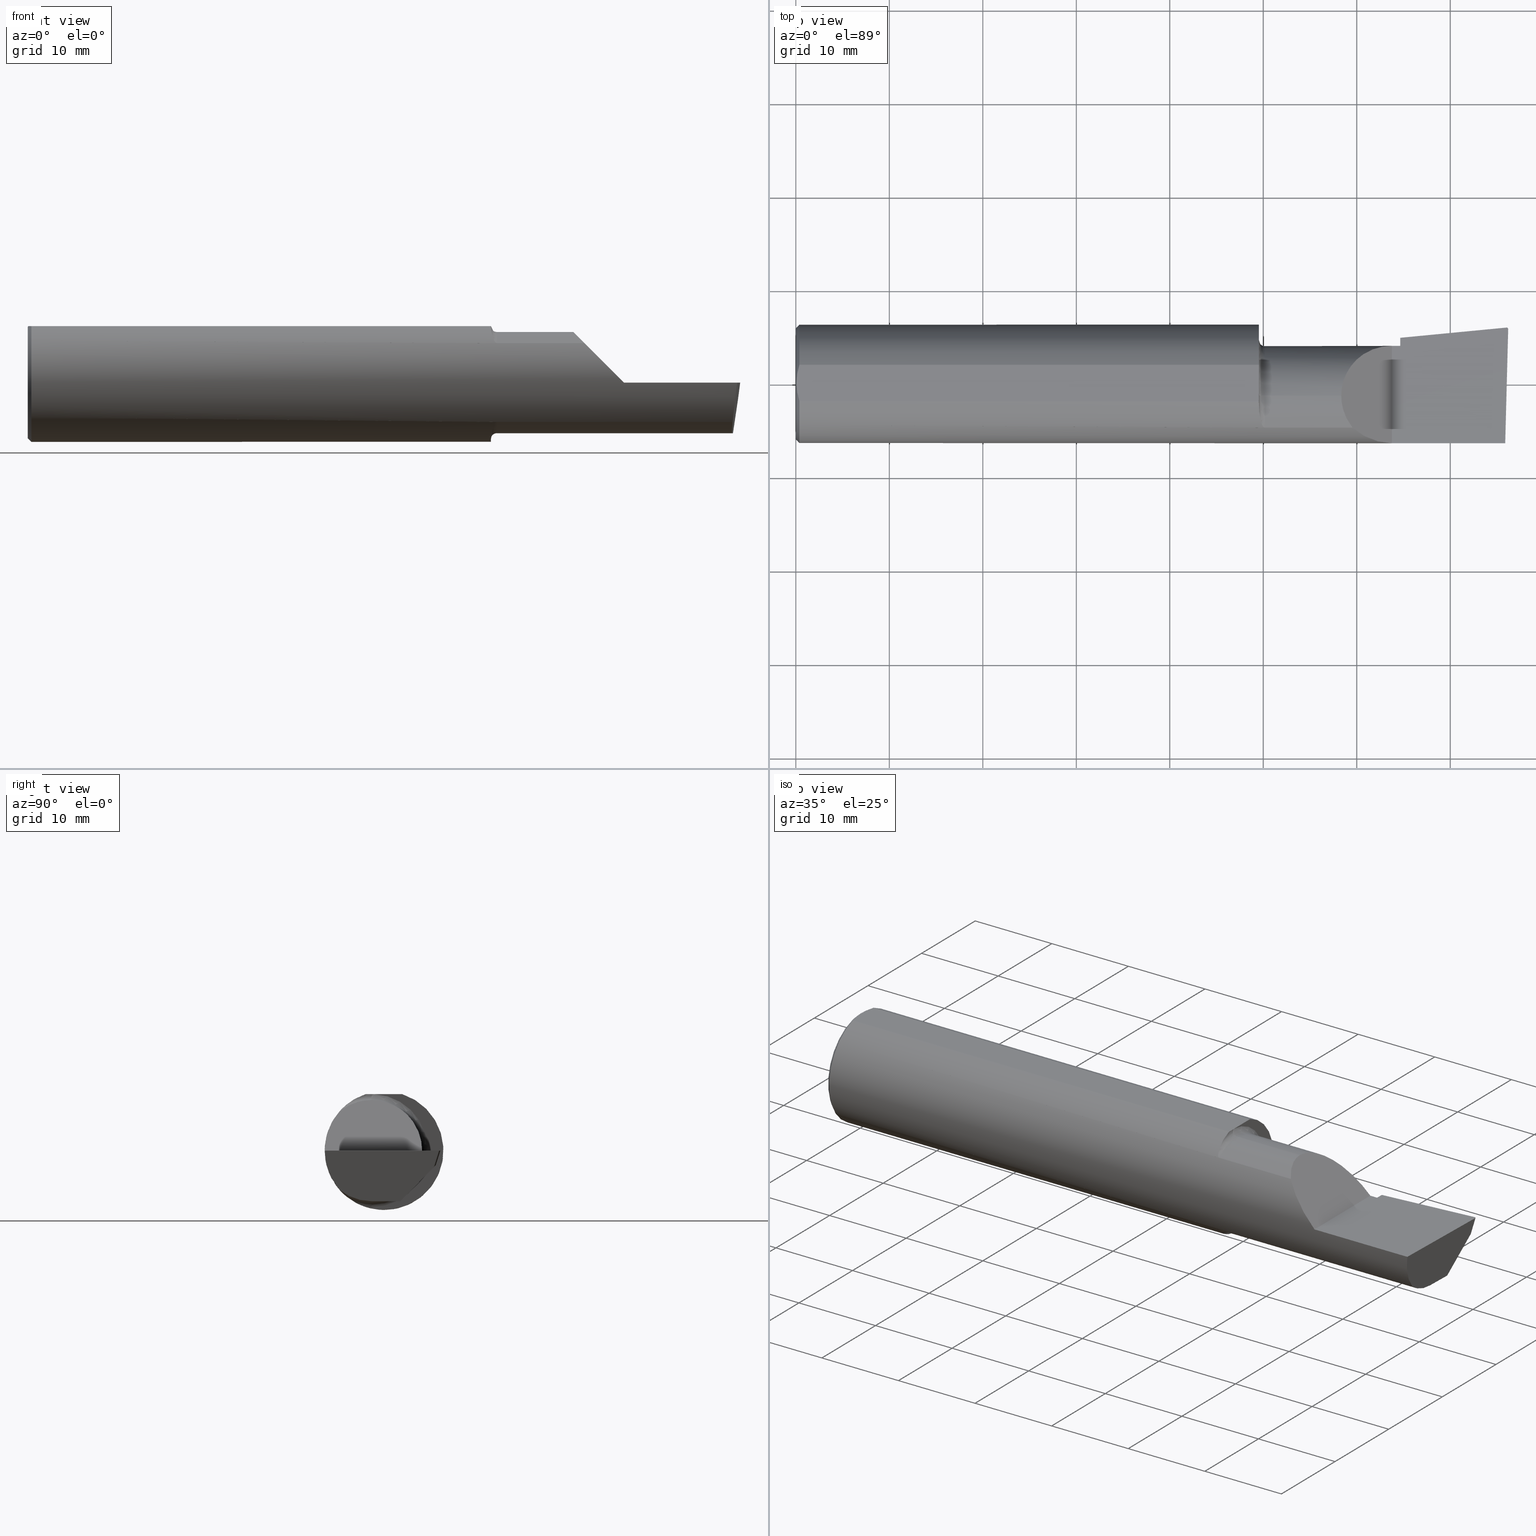
[diagram: canonical four-view strip — front | top / right | iso, engineering-drawing reading convention]
A machine part, canonical four-view strip (front | top / right | iso — engineering-drawing reading convention). The complete STEP part file that produces these views, byte-faithful:
ISO-10303-21;
HEADER;
FILE_DESCRIPTION (( 'STEP AP203' ),
    '1' );
FILE_NAME ('213705-B4901000R.STEP',
    '2024-04-17T17:26:14',
    ( '' ),
    ( '' ),
    'SwSTEP 2.0',
    'SolidWorks 2022',
    '' );
FILE_SCHEMA (( 'CONFIG_CONTROL_DESIGN' ));
ENDSEC;

DATA;
#1 = ADVANCED_FACE ( 'NONE', ( #572 ), #452, .F. ) ;
#2 = ORIENTED_EDGE ( 'NONE', *, *, #179, .T. ) ;
#3 = DIRECTION ( 'NONE',  ( 0.9953961983671787417, 0.09584575252022459191, -2.606391986280347847E-16 ) ) ;
#4 = APPROVAL_STATUS ( 'not_yet_approved' ) ;
#5 = APPLICATION_PROTOCOL_DEFINITION ( 'international standard', 'config_control_design', 1994, #767 ) ;
#6 = CARTESIAN_POINT ( 'NONE',  ( 0.004092330037930667214, 0.02606142970188504368, 0.2378500000000000059 ) ) ;
#7 = VERTEX_POINT ( 'NONE', #700 ) ;
#8 = CARTESIAN_POINT ( 'NONE',  ( 1.962797058507744996, -0.1743943839926588579, -0.1789958554125695989 ) ) ;
#9 = DIRECTION ( 'NONE',  ( 0.000000000000000000, 0.000000000000000000, -1.000000000000000000 ) ) ;
#10 = CC_DESIGN_APPROVAL ( #837, ( #343 ) ) ;
#11 = ORIENTED_EDGE ( 'NONE', *, *, #116, .T. ) ;
#12 = EDGE_CURVE ( 'NONE', #95, #238, #275, .T. ) ;
#13 = DIRECTION ( 'NONE',  ( -1.000000000000000000, -0.000000000000000000, -0.000000000000000000 ) ) ;
#14 = DIRECTION ( 'NONE',  ( -1.000000000000000000, -0.000000000000000000, -0.000000000000000000 ) ) ;
#15 = CIRCLE ( 'NONE', #571, 0.2498499999999999888 ) ;
#16 = EDGE_CURVE ( 'NONE', #224, #489, #374, .T. ) ;
#17 = ORIENTED_EDGE ( 'NONE', *, *, #169, .F. ) ;
#18 = DIRECTION ( 'NONE',  ( -1.000000000000000000, -0.000000000000000000, -0.000000000000000000 ) ) ;
#19 = CARTESIAN_POINT ( 'NONE',  ( 0.000000000000000000, -0.05299999999999998462, 0.000000000000000000 ) ) ;
#20 = ORIENTED_EDGE ( 'NONE', *, *, #412, .T. ) ;
#21 = CARTESIAN_POINT ( 'NONE',  ( 1.975000000000000089, -0.05299999999999998462, 0.000000000000000000 ) ) ;
#22 = ORIENTED_EDGE ( 'NONE', *, *, #732, .T. ) ;
#23 = CIRCLE ( 'NONE', #605, 0.2131499999999999784 ) ;
#24 = CARTESIAN_POINT ( 'NONE',  ( 1.975000000000000089, -0.05299999999999998462, 0.000000000000000000 ) ) ;
#25 = FACE_OUTER_BOUND ( 'NONE', #579, .T. ) ;
#26 = ORIENTED_EDGE ( 'NONE', *, *, #105, .T. ) ;
#27 = DIRECTION ( 'NONE',  ( 0.000000000000000000, 1.000000000000000000, -1.707404996040164265E-16 ) ) ;
#28 = CALENDAR_DATE ( 2024, 17, 4 ) ;
#29 = FACE_OUTER_BOUND ( 'NONE', #386, .T. ) ;
#30 = VERTEX_POINT ( 'NONE', #566 ) ;
#31 = DIRECTION ( 'NONE',  ( 0.000000000000000000, 0.000000000000000000, 1.000000000000000000 ) ) ;
#32 = CARTESIAN_POINT ( 'NONE',  ( 2.545000000000000373, 0.1943384830701196109, 0.000000000000000000 ) ) ;
#33 = CARTESIAN_POINT ( 'NONE',  ( 2.448145753305722927, -0.2498500000000000165, 0.06185424669427665861 ) ) ;
#34 = EDGE_CURVE ( 'NONE', #439, #558, #847, .T. ) ;
#35 = DIRECTION ( 'NONE',  ( 0.000000000000000000, 0.000000000000000000, 1.000000000000000000 ) ) ;
#36 = LOCAL_TIME ( 10, 26, 14.00000000000000000, #471 ) ;
#37 = DIRECTION ( 'NONE',  ( 0.000000000000000000, 0.000000000000000000, 1.000000000000000000 ) ) ;
#38 = ORIENTED_EDGE ( 'NONE', *, *, #429, .T. ) ;
#39 = AXIS2_PLACEMENT_3D ( 'NONE', #99, #642, #510 ) ;
#40 = AXIS2_PLACEMENT_3D ( 'NONE', #775, #121, #376 ) ;
#41 = DIRECTION ( 'NONE',  ( -0.1240019227989202777, -0.3022330132596641183, -0.9451342385281332747 ) ) ;
#42 = CARTESIAN_POINT ( 'NONE',  ( 1.951680550596499808, -0.1214972057705730191, 0.2186080375779522467 ) ) ;
#43 = CARTESIAN_POINT ( 'NONE',  ( 2.540349815208492235, 0.05592018782259811777, -0.1832193089843148770 ) ) ;
#44 = PERSON_AND_ORGANIZATION_ROLE ( 'classification_officer' ) ;
#45 = ORIENTED_EDGE ( 'NONE', *, *, #562, .T. ) ;
#46 = CARTESIAN_POINT ( 'NONE',  ( 2.545000000000000373, 0.1943384830701256338, -1.848978257522366020E-15 ) ) ;
#47 = DIRECTION ( 'NONE',  ( 0.02617694830786375729, 0.9996573249755575929, -6.752493720234686897E-18 ) ) ;
#48 = ORIENTED_EDGE ( 'NONE', *, *, #201, .F. ) ;
#49 = CARTESIAN_POINT ( 'NONE',  ( 1.950000000000000178, -0.04105010460296977526, 0.2378500000000000059 ) ) ;
#50 = AXIS2_PLACEMENT_3D ( 'NONE', #747, #63, #602 ) ;
#51 = CARTESIAN_POINT ( 'NONE',  ( 2.390325100969863392, -0.2278791102234763166, 0.1196748990301357285 ) ) ;
#52 = CIRCLE ( 'NONE', #542, 0.2131499999999999784 ) ;
#53 = CARTESIAN_POINT ( 'NONE',  ( 2.534569588231498916, 0.1159501401920711577, -0.1355866241796522820 ) ) ;
#54 = AXIS2_PLACEMENT_3D ( 'NONE', #497, #568, #623 ) ;
#55 = PLANE ( 'NONE',  #181 ) ;
#56 = ORIENTED_EDGE ( 'NONE', *, *, #322, .T. ) ;
#57 = CARTESIAN_POINT ( 'NONE',  ( 1.950000000000000178, -0.08036415094339657839, 0.2365726648265749632 ) ) ;
#58 = CC_DESIGN_DATE_AND_TIME_ASSIGNMENT ( #97, #119, ( #254 ) ) ;
#59 =( BOUNDED_CURVE ( )  B_SPLINE_CURVE ( 3, ( #65, #789, #739, #653 ),
 .UNSPECIFIED., .F., .T. ) 
 B_SPLINE_CURVE_WITH_KNOTS ( ( 4, 4 ),
 ( 1.953092279228479944, 3.511516179717668606 ),
 .UNSPECIFIED. ) 
 CURVE ( )  GEOMETRIC_REPRESENTATION_ITEM ( )  RATIONAL_B_SPLINE_CURVE ( ( 1.000000000000000000, 0.8076450242550571312, 0.8076450242550571312, 1.000000000000000000 ) ) 
 REPRESENTATION_ITEM ( '' )  );
#60 = CARTESIAN_POINT ( 'NONE',  ( 0.01499999999999999771, 3.059780027669661931E-17, 0.2498499999999999888 ) ) ;
#61 = VERTEX_POINT ( 'NONE', #312 ) ;
#62 = CARTESIAN_POINT ( 'NONE',  ( 1.949999999999990186, -0.1016924291521890261, -0.2293274111511740820 ) ) ;
#63 = DIRECTION ( 'NONE',  ( -1.000000000000000000, -0.000000000000000000, -0.000000000000000000 ) ) ;
#64 = EDGE_CURVE ( 'NONE', #845, #439, #708, .T. ) ;
#65 = CARTESIAN_POINT ( 'NONE',  ( 2.999806390372777187, 0.2307563466314208889, -6.819658003834520064E-17 ) ) ;
#66 = ORIENTED_EDGE ( 'NONE', *, *, #438, .T. ) ;
#67 = CARTESIAN_POINT ( 'NONE',  ( 0.003000000000000035624, 4.000211044293764417E-17, 0.2378500000000000059 ) ) ;
#68 = DIRECTION ( 'NONE',  ( 0.000000000000000000, 0.000000000000000000, 1.000000000000000000 ) ) ;
#69 = ORIENTED_EDGE ( 'NONE', *, *, #773, .F. ) ;
#70 = LINE ( 'NONE', #865, #124 ) ;
#71 = DATE_TIME_ROLE ( 'creation_date' ) ;
#72 = CARTESIAN_POINT ( 'NONE',  ( 1.950000000000000178, 0.000000000000000000, 0.000000000000000000 ) ) ;
#73 = ORIENTED_EDGE ( 'NONE', *, *, #784, .F. ) ;
#74 = CARTESIAN_POINT ( 'NONE',  ( 2.993512870449312135, 0.2374961668063718667, -6.829619984160658046E-17 ) ) ;
#75 = EDGE_CURVE ( 'NONE', #379, #709, #365, .T. ) ;
#76 = EDGE_CURVE ( 'NONE', #426, #238, #850, .T. ) ;
#77 = CARTESIAN_POINT ( 'NONE',  ( 2.545000000000000373, -0.2500000000000000555, 5.084312937251844195E-17 ) ) ;
#78 = ORIENTED_EDGE ( 'NONE', *, *, #252, .T. ) ;
#79 = CARTESIAN_POINT ( 'NONE',  ( 0.003000000000000061211, -0.01298133447204027208, 0.2378500000000000614 ) ) ;
#80 = CARTESIAN_POINT ( 'NONE',  ( 2.545000000000000373, 0.02733053485622416109, -0.2131499999999999506 ) ) ;
#81 = AXIS2_PLACEMENT_3D ( 'NONE', #794, #202, #68 ) ;
#82 = VECTOR ( 'NONE', #578, 39.37007874015748143 ) ;
#83 = ORIENTED_EDGE ( 'NONE', *, *, #101, .T. ) ;
#84 = AXIS2_PLACEMENT_3D ( 'NONE', #695, #840, #298 ) ;
#85 = FACE_OUTER_BOUND ( 'NONE', #832, .T. ) ;
#86 = CC_DESIGN_PERSON_AND_ORGANIZATION_ASSIGNMENT ( #206, #804, ( #583 ) ) ;
#87 = ORIENTED_EDGE ( 'NONE', *, *, #667, .F. ) ;
#88 = CYLINDRICAL_SURFACE ( 'NONE', #416, 0.2131499999999999506 ) ;
#89 = PERSON_AND_ORGANIZATION ( #130, #373 ) ;
#90 = ORIENTED_EDGE ( 'NONE', *, *, #34, .F. ) ;
#91 =( GEOMETRIC_REPRESENTATION_CONTEXT ( 3 ) GLOBAL_UNCERTAINTY_ASSIGNED_CONTEXT ( ( #589 ) ) GLOBAL_UNIT_ASSIGNED_CONTEXT ( ( #544, #260, #742 ) ) REPRESENTATION_CONTEXT ( 'NONE', 'WORKASPACE' ) );
#92 = FACE_OUTER_BOUND ( 'NONE', #195, .T. ) ;
#93 = APPROVAL_ROLE ( '' ) ;
#94 = PLANE ( 'NONE',  #193 ) ;
#95 = VERTEX_POINT ( 'NONE', #771 ) ;
#96 = LINE ( 'NONE', #297, #243 ) ;
#97 = DATE_AND_TIME ( #361, #820 ) ;
#98 = DIRECTION ( 'NONE',  ( 0.000000000000000000, 0.000000000000000000, -1.000000000000000000 ) ) ;
#99 = CARTESIAN_POINT ( 'NONE',  ( 1.950000000000000178, -0.05299999999999998462, 0.000000000000000000 ) ) ;
#100 = PRODUCT_DEFINITION_SHAPE ( 'NONE', 'NONE',  #583 ) ;
#101 = EDGE_CURVE ( 'NONE', #7, #404, #348, .T. ) ;
#102 = ORIENTED_EDGE ( 'NONE', *, *, #105, .F. ) ;
#103 = LINE ( 'NONE', #357, #192 ) ;
#104 = CARTESIAN_POINT ( 'NONE',  ( 0.01499999999999999771, 0.000000000000000000, 0.000000000000000000 ) ) ;
#105 = EDGE_CURVE ( 'NONE', #644, #709, #175, .T. ) ;
#106 = CARTESIAN_POINT ( 'NONE',  ( 2.344079160038586185, -0.1868028301886760500, 0.1659208399614119644 ) ) ;
#107 = CYLINDRICAL_SURFACE ( 'NONE', #662, 0.006499999999999990161 ) ;
#108 = DIRECTION ( 'NONE',  ( -0.7071067811865436870, 0.000000000000000000, -0.7071067811865514585 ) ) ;
#109 = ORIENTED_EDGE ( 'NONE', *, *, #454, .T. ) ;
#110 = AXIS2_PLACEMENT_3D ( 'NONE', #316, #301, #496 ) ;
#111 = ORIENTED_EDGE ( 'NONE', *, *, #64, .F. ) ;
#112 = CIRCLE ( 'NONE', #738, 0.2348499999999996424 ) ;
#113 = CARTESIAN_POINT ( 'NONE',  ( 1.975000000000000089, -0.05299999999999998462, 0.000000000000000000 ) ) ;
#114 = ORIENTED_EDGE ( 'NONE', *, *, #268, .F. ) ;
#115 = ADVANCED_FACE ( 'NONE', ( #183 ), #799, .T. ) ;
#116 = EDGE_CURVE ( 'NONE', #672, #483, #759, .T. ) ;
#117 = CARTESIAN_POINT ( 'NONE',  ( 0.01499999999999999771, 0.000000000000000000, 0.000000000000000000 ) ) ;
#118 = ORIENTED_EDGE ( 'NONE', *, *, #552, .F. ) ;
#119 = DATE_TIME_ROLE ( 'classification_date' ) ;
#120 = CIRCLE ( 'NONE', #636, 0.2498499999999999888 ) ;
#121 = DIRECTION ( 'NONE',  ( -0.000000000000000000, 1.000000000000000000, 1.224646799147353207E-16 ) ) ;
#122 = CARTESIAN_POINT ( 'NONE',  ( 0.01120763235350242214, 0.06411521680875356677, 0.2378500000000000336 ) ) ;
#123 = ORIENTED_EDGE ( 'NONE', *, *, #654, .T. ) ;
#124 = VECTOR ( 'NONE', #338, 39.37007874015748143 ) ;
#125 = CARTESIAN_POINT ( 'NONE',  ( 1.965857071685141788, -0.1799228808997979934, 0.1733778622677449033 ) ) ;
#126 = CC_DESIGN_DATE_AND_TIME_ASSIGNMENT ( #669, #71, ( #583 ) ) ;
#127 = VECTOR ( 'NONE', #47, 39.37007874015748854 ) ;
#128 = CARTESIAN_POINT ( 'NONE',  ( 2.968492717492763777, -0.1868028301886794917, -0.1659208399614086338 ) ) ;
#129 = VERTEX_POINT ( 'NONE', #731 ) ;
#130 = PERSON ( 'UNSPECIFIED', 'UNSPECIFIED', 'UNSPECIFIED', ('UNSPECIFIED'), ('UNSPECIFIED'), ('UNSPECIFIED') ) ;
#131 = LINE ( 'NONE', #349, #524 ) ;
#132 = LENGTH_MEASURE_WITH_UNIT ( LENGTH_MEASURE( 0.02539999999999999897 ), #613 );
#133 = LINE ( 'NONE', #581, #157 ) ;
#134 = VERTEX_POINT ( 'NONE', #266 ) ;
#135 = CARTESIAN_POINT ( 'NONE',  ( 1.951227564404961257, -0.1217005943024295350, -0.2193523119135136479 ) ) ;
#136 = COORDINATED_UNIVERSAL_TIME_OFFSET ( 8, 0, .BEHIND. ) ;
#137 = DIRECTION ( 'NONE',  ( -1.000000000000000000, 5.691349986800549142E-18, -0.000000000000000000 ) ) ;
#138 = CARTESIAN_POINT ( 'NONE',  ( 0.008199648822849016708, 0.05156445313451110679, 0.2378500000000000059 ) ) ;
#139 = ORIENTED_EDGE ( 'NONE', *, *, #802, .F. ) ;
#140 = DIRECTION ( 'NONE',  ( 0.000000000000000000, 0.000000000000000000, -1.000000000000000000 ) ) ;
#141 = CYLINDRICAL_SURFACE ( 'NONE', #550, 0.2131499999999999506 ) ;
#142 = CARTESIAN_POINT ( 'NONE',  ( 2.985236590184782823, 0.2182997624328534558, -0.06000000000000007411 ) ) ;
#143 = ORIENTED_EDGE ( 'NONE', *, *, #347, .F. ) ;
#144 = ADVANCED_FACE ( 'NONE', ( #783 ), #533, .F. ) ;
#145 = DIRECTION ( 'NONE',  ( 0.000000000000000000, -0.6963153109074925462, -0.7177360153954946975 ) ) ;
#146 = DIRECTION ( 'NONE',  ( -0.09584575252021046432, 0.9953961983671800740, 0.000000000000000000 ) ) ;
#147 = ORIENTED_EDGE ( 'NONE', *, *, #281, .T. ) ;
#148 = CARTESIAN_POINT ( 'NONE',  ( 0.000000000000000000, 0.000000000000000000, 0.000000000000000000 ) ) ;
#149 = DIRECTION ( 'NONE',  ( 0.000000000000000000, 0.000000000000000000, 1.000000000000000000 ) ) ;
#150 = TOROIDAL_SURFACE ( 'NONE', #50, 0.2381499999999999173, 0.02499999999999995628 ) ;
#151 = EDGE_LOOP ( 'NONE', ( #409, #253, #11, #615, #314 ) ) ;
#152 = CARTESIAN_POINT ( 'NONE',  ( 0.01499999999999999771, 0.000000000000000000, 0.000000000000000000 ) ) ;
#153 = VECTOR ( 'NONE', #323, 39.37007874015748143 ) ;
#154 = AXIS2_PLACEMENT_3D ( 'NONE', #814, #735, #140 ) ;
#155 = CIRCLE ( 'NONE', #512, 0.2131499999999998951 ) ;
#156 = ORIENTED_EDGE ( 'NONE', *, *, #552, .T. ) ;
#157 = VECTOR ( 'NONE', #189, 39.37007874015748854 ) ;
#158 = FACE_OUTER_BOUND ( 'NONE', #282, .T. ) ;
#159 = EDGE_CURVE ( 'NONE', #776, #672, #806, .T. ) ;
#160 = ORIENTED_EDGE ( 'NONE', *, *, #252, .F. ) ;
#161 = CARTESIAN_POINT ( 'NONE',  ( 1.975000000000000089, -0.05299999999999998462, 0.000000000000000000 ) ) ;
#162 = CARTESIAN_POINT ( 'NONE',  ( 0.01499999999999999771, 0.000000000000000000, -0.2498499999999999888 ) ) ;
#163 = ORIENTED_EDGE ( 'NONE', *, *, #188, .T. ) ;
#164 = CC_DESIGN_APPROVAL ( #277, ( #583 ) ) ;
#165 = PLANE ( 'NONE',  #54 ) ;
#166 = DIRECTION ( 'NONE',  ( 0.000000000000000000, -0.2936076258024064023, -0.9559260233253794592 ) ) ;
#167 = CARTESIAN_POINT ( 'NONE',  ( 2.966218632342874528, -0.05211540375603095077, -0.2131499999999999229 ) ) ;
#168 = DIRECTION ( 'NONE',  ( -1.000000000000000000, -0.000000000000000000, -0.000000000000000000 ) ) ;
#169 = EDGE_CURVE ( 'NONE', #238, #240, #774, .T. ) ;
#170 = PLANE ( 'NONE',  #84 ) ;
#171 = VERTEX_POINT ( 'NONE', #516 ) ;
#172 = ORIENTED_EDGE ( 'NONE', *, *, #817, .T. ) ;
#173 = CARTESIAN_POINT ( 'NONE',  ( 2.993310817358674214, 0.2374961668063718667, -6.831130739536553237E-17 ) ) ;
#174 = LINE ( 'NONE', #77, #705 ) ;
#175 = LINE ( 'NONE', #444, #723 ) ;
#176 = ORIENTED_EDGE ( 'NONE', *, *, #802, .T. ) ;
#177 = LOCAL_TIME ( 10, 26, 14.00000000000000000, #492 ) ;
#178 = CARTESIAN_POINT ( 'NONE',  ( 1.973548866468135321, -0.1868028301907317112, 0.1659208399590980654 ) ) ;
#179 = EDGE_CURVE ( 'NONE', #686, #267, #390, .T. ) ;
#180 = ORIENTED_EDGE ( 'NONE', *, *, #64, .T. ) ;
#181 = AXIS2_PLACEMENT_3D ( 'NONE', #592, #251, #518 ) ;
#182 = CARTESIAN_POINT ( 'NONE',  ( 1.975000000000000089, -0.1868028301886793530, 0.1659208399614086338 ) ) ;
#183 = FACE_OUTER_BOUND ( 'NONE', #190, .T. ) ;
#184 = CARTESIAN_POINT ( 'NONE',  ( 1.957343635746627397, -0.1582230848692697256, 0.1936715022401949149 ) ) ;
#185 = CARTESIAN_POINT ( 'NONE',  ( 0.003000000000000063380, 0.01299872814765626154, 0.2378499999999999226 ) ) ;
#186 = ORIENTED_EDGE ( 'NONE', *, *, #599, .F. ) ;
#187 = CARTESIAN_POINT ( 'NONE',  ( 2.983714411583732851, 0.1632262006094490070, -0.1166167083458045511 ) ) ;
#188 = EDGE_CURVE ( 'NONE', #267, #209, #538, .T. ) ;
#189 = DIRECTION ( 'NONE',  ( -0.1240019227989202638, -0.3022330132596640628, -0.9451342385281331637 ) ) ;
#190 = EDGE_LOOP ( 'NONE', ( #546, #176, #419, #242, #296, #823, #658, #684, #87, #69, #655, #573, #828 ) ) ;
#191 = EDGE_CURVE ( 'NONE', #489, #588, #59, .T. ) ;
#192 = VECTOR ( 'NONE', #753, 39.37007874015748143 ) ;
#193 = AXIS2_PLACEMENT_3D ( 'NONE', #539, #635, #146 ) ;
#194 = DIRECTION ( 'NONE',  ( 0.000000000000000000, 0.000000000000000000, -1.000000000000000000 ) ) ;
#195 = EDGE_LOOP ( 'NONE', ( #337, #78, #758, #66, #435 ) ) ;
#196 = DIRECTION ( 'NONE',  ( 0.000000000000000000, 0.000000000000000000, 1.000000000000000000 ) ) ;
#197 = DIRECTION ( 'NONE',  ( 0.000000000000000000, 0.9524855432518775089, -0.3045837978228255749 ) ) ;
#198 = CARTESIAN_POINT ( 'NONE',  ( 2.344079160038586185, -0.1868028301886760500, 0.1659208399614119644 ) ) ;
#199 = ORIENTED_EDGE ( 'NONE', *, *, #417, .T. ) ;
#200 = CARTESIAN_POINT ( 'NONE',  ( 0.000000000000000000, -0.07650098038587496707, 0.2378499999999999226 ) ) ;
#201 = EDGE_CURVE ( 'NONE', #644, #800, #574, .T. ) ;
#202 = DIRECTION ( 'NONE',  ( -1.000000000000000000, -0.000000000000000000, -0.000000000000000000 ) ) ;
#203 = EDGE_CURVE ( 'NONE', #588, #209, #133, .T. ) ;
#204 = ORIENTED_EDGE ( 'NONE', *, *, #229, .F. ) ;
#205 = CARTESIAN_POINT ( 'NONE',  ( 2.545000000000000373, 0.2148312740513257935, -0.01988118725737612197 ) ) ;
#206 = PERSON_AND_ORGANIZATION ( #130, #373 ) ;
#207 = AXIS2_PLACEMENT_3D ( 'NONE', #72, #608, #556 ) ;
#208 = CARTESIAN_POINT ( 'NONE',  ( 1.950000000000000178, -0.06096394231309279488, 0.2378500000000000059 ) ) ;
#209 = VERTEX_POINT ( 'NONE', #857 ) ;
#210 = CARTESIAN_POINT ( 'NONE',  ( 1.972232603162240805, -0.1862758070845874914, -0.1665151405181425626 ) ) ;
#211 = DATE_AND_TIME ( #264, #535 ) ;
#212 = PERSON_AND_ORGANIZATION_ROLE ( 'design_owner' ) ;
#213 = VERTEX_POINT ( 'NONE', #863 ) ;
#214 = CC_DESIGN_PERSON_AND_ORGANIZATION_ASSIGNMENT ( #89, #44, ( #254 ) ) ;
#215 = CARTESIAN_POINT ( 'NONE',  ( 2.989362363380627219, 0.2181189514202936108, -0.06059586115756955549 ) ) ;
#216 = VECTOR ( 'NONE', #137, 39.37007874015748143 ) ;
#217 = ORIENTED_EDGE ( 'NONE', *, *, #116, .F. ) ;
#218 = ADVANCED_FACE ( 'NONE', ( #661 ), #55, .T. ) ;
#219 = CARTESIAN_POINT ( 'NONE',  ( 1.950000000000000178, -0.06494989539703015236, 0.2378500000000000059 ) ) ;
#220 = VECTOR ( 'NONE', #368, 39.37007874015748143 ) ;
#221 = AXIS2_PLACEMENT_3D ( 'NONE', #148, #796, #196 ) ;
#222 = ORIENTED_EDGE ( 'NONE', *, *, #169, .T. ) ;
#223 = CARTESIAN_POINT ( 'NONE',  ( 2.545000000000000373, 0.05698775240724714836, -0.1825804393148457716 ) ) ;
#224 = VERTEX_POINT ( 'NONE', #460 ) ;
#225 = CARTESIAN_POINT ( 'NONE',  ( 0.003000000000000035624, 4.000211044293764417E-17, 0.2378500000000000059 ) ) ;
#226 = DATE_AND_TIME ( #28, #177 ) ;
#227 = CARTESIAN_POINT ( 'NONE',  ( 1.950000000000000178, 0.000000000000000000, 0.000000000000000000 ) ) ;
#228 = EDGE_CURVE ( 'NONE', #129, #558, #633, .T. ) ;
#229 = EDGE_CURVE ( 'NONE', #257, #267, #632, .T. ) ;
#230 = CARTESIAN_POINT ( 'NONE',  ( 2.510000000000000231, -0.2498499999999999610, 6.000769315822035917E-17 ) ) ;
#231 = DIRECTION ( 'NONE',  ( 0.000000000000000000, 0.000000000000000000, 1.000000000000000000 ) ) ;
#232 = DIRECTION ( 'NONE',  ( -1.000000000000000000, 0.000000000000000000, -0.000000000000000000 ) ) ;
#233 = AXIS2_PLACEMENT_3D ( 'NONE', #729, #803, #145 ) ;
#234 = ORIENTED_EDGE ( 'NONE', *, *, #683, .F. ) ;
#235 = CARTESIAN_POINT ( 'NONE',  ( 2.984660695557688204, 0.2097293816961966206, -0.06549088146713159808 ) ) ;
#236 = FACE_OUTER_BOUND ( 'NONE', #852, .T. ) ;
#237 = CARTESIAN_POINT ( 'NONE',  ( 2.543466858877807990, 0.05663251955088049322, -0.1827944341085903646 ) ) ;
#238 = VERTEX_POINT ( 'NONE', #198 ) ;
#239 = CARTESIAN_POINT ( 'NONE',  ( 1.970144309637441360, -0.1849788583324331326, 0.1679547276881067919 ) ) ;
#240 = VERTEX_POINT ( 'NONE', #597 ) ;
#241 = APPROVAL_STATUS ( 'not_yet_approved' ) ;
#242 = ORIENTED_EDGE ( 'NONE', *, *, #12, .T. ) ;
#243 = VECTOR ( 'NONE', #367, 39.37007874015748143 ) ;
#244 = FACE_OUTER_BOUND ( 'NONE', #458, .T. ) ;
#245 = CARTESIAN_POINT ( 'NONE',  ( 2.260000000000000231, -0.1868028301886794917, 0.1659208399614086338 ) ) ;
#246 = CIRCLE ( 'NONE', #40, 0.02499999999999997363 ) ;
#247 = ORIENTED_EDGE ( 'NONE', *, *, #228, .T. ) ;
#248 = DIRECTION ( 'NONE',  ( 0.000000000000000000, 0.000000000000000000, 1.000000000000000000 ) ) ;
#249 = ADVANCED_FACE ( 'NONE', ( #236 ), #305, .T. ) ;
#250 = CARTESIAN_POINT ( 'NONE',  ( 1.950000900032402340, -0.05299999999999998462, 0.2378500000000221548 ) ) ;
#251 = DIRECTION ( 'NONE',  ( 1.000000000000000000, 0.000000000000000000, 0.000000000000000000 ) ) ;
#252 = EDGE_CURVE ( 'NONE', #445, #697, #355, .T. ) ;
#253 = ORIENTED_EDGE ( 'NONE', *, *, #159, .T. ) ;
#254 = SECURITY_CLASSIFICATION ( '', '', #449 ) ;
#255 = CARTESIAN_POINT ( 'NONE',  ( 1.961268146151109448, -0.1703904609315280150, 0.1828159088808244681 ) ) ;
#256 = CARTESIAN_POINT ( 'NONE',  ( 0.000000000000000000, 0.000000000000000000, 0.000000000000000000 ) ) ;
#257 = VERTEX_POINT ( 'NONE', #340 ) ;
#258 = AXIS2_PLACEMENT_3D ( 'NONE', #113, #575, #779 ) ;
#259 = LINE ( 'NONE', #205, #433 ) ;
#260 =( NAMED_UNIT ( * ) PLANE_ANGLE_UNIT ( ) SI_UNIT ( $, .RADIAN. ) );
#261 = CARTESIAN_POINT ( 'NONE',  ( 2.966195468375009803, -0.05299999999999998462, -0.2131499999999999229 ) ) ;
#262 = EDGE_LOOP ( 'NONE', ( #381, #786, #20, #507, #864 ) ) ;
#263 = DIRECTION ( 'NONE',  ( -0.7071067811865513475, 0.000000000000000000, 0.7071067811865435759 ) ) ;
#264 = CALENDAR_DATE ( 2024, 17, 4 ) ;
#265 = ADVANCED_FACE ( 'NONE', ( #689 ), #170, .F. ) ;
#266 = CARTESIAN_POINT ( 'NONE',  ( 2.545000000000000373, 0.1943384830701264110, 7.172376958449230963E-16 ) ) ;
#267 = VERTEX_POINT ( 'NONE', #476 ) ;
#268 = EDGE_CURVE ( 'NONE', #800, #257, #603, .T. ) ;
#269 = CARTESIAN_POINT ( 'NONE',  ( 1.973547768521294765, -0.1868028301886793807, -0.1659208399614086893 ) ) ;
#270 = LINE ( 'NONE', #407, #216 ) ;
#271 = CARTESIAN_POINT ( 'NONE',  ( 1.950001800093990711, -0.05698398688203977491, 0.2378499975680403167 ) ) ;
#272 = ORIENTED_EDGE ( 'NONE', *, *, #718, .T. ) ;
#273 = CARTESIAN_POINT ( 'NONE',  ( 0.008160184410935168720, -0.05138200716576601240, 0.2378500000000000614 ) ) ;
#274 = PERSON_AND_ORGANIZATION ( #130, #373 ) ;
#275 =( BOUNDED_CURVE ( )  B_SPLINE_CURVE ( 3, ( #230, #33, #51, #106 ),
 .UNSPECIFIED., .F., .T. ) 
 B_SPLINE_CURVE_WITH_KNOTS ( ( 4, 4 ),
 ( 4.712388980384689674, 5.438654041019590935 ),
 .UNSPECIFIED. ) 
 CURVE ( )  GEOMETRIC_REPRESENTATION_ITEM ( )  RATIONAL_B_SPLINE_CURVE ( ( 1.000000000000000000, 0.9565258159410974237, 0.9565258159410974237, 1.000000000000000000 ) ) 
 REPRESENTATION_ITEM ( '' )  );
#276 = FACE_OUTER_BOUND ( 'NONE', #262, .T. ) ;
#277 = APPROVAL ( #4, 'UNSPECIFIED' ) ;
#278 = ORIENTED_EDGE ( 'NONE', *, *, #553, .F. ) ;
#279 = CARTESIAN_POINT ( 'NONE',  ( 2.510000000000000231, 0.1601499999999999035, 6.000769315822035917E-17 ) ) ;
#280 = ADVANCED_FACE ( 'NONE', ( #25 ), #428, .F. ) ;
#281 = EDGE_CURVE ( 'NONE', #622, #481, #15, .T. ) ;
#282 = EDGE_LOOP ( 'NONE', ( #448, #172, #766 ) ) ;
#283 = DIMENSIONAL_EXPONENTS ( 1.000000000000000000, 0.000000000000000000, 0.000000000000000000, 0.000000000000000000, 0.000000000000000000, 0.000000000000000000, 0.000000000000000000 ) ;
#284 = CARTESIAN_POINT ( 'NONE',  ( 2.991359894127311403, 0.2138750095474682700, -0.06516861643763595391 ) ) ;
#285 = AXIS2_PLACEMENT_3D ( 'NONE', #19, #472, #149 ) ;
#286 = ORIENTED_EDGE ( 'NONE', *, *, #191, .T. ) ;
#287 = CARTESIAN_POINT ( 'NONE',  ( 2.385139620819824113, 0.1601499999999999591, 0.1248603791801747992 ) ) ;
#288 = FACE_OUTER_BOUND ( 'NONE', #309, .T. ) ;
#289 = VECTOR ( 'NONE', #475, 39.37007874015748143 ) ;
#290 = EDGE_LOOP ( 'NONE', ( #663, #272, #548, #278, #123, #359, #366, #48, #109, #356 ) ) ;
#291 = DIRECTION ( 'NONE',  ( -1.000000000000000000, -0.000000000000000000, -0.000000000000000000 ) ) ;
#292 = PERSON_AND_ORGANIZATION_ROLE ( 'design_supplier' ) ;
#293 = PLANE ( 'NONE',  #639 ) ;
#294 = ADVANCED_FACE ( 'NONE', ( #29 ), #94, .T. ) ;
#295 = EDGE_CURVE ( 'NONE', #61, #506, #308, .T. ) ;
#296 = ORIENTED_EDGE ( 'NONE', *, *, #76, .F. ) ;
#297 = CARTESIAN_POINT ( 'NONE',  ( 1.878049121262586821E-31, -0.2498499999999999610, 7.172378389328440442E-16 ) ) ;
#298 = DIRECTION ( 'NONE',  ( 0.000000000000000000, -1.000000000000000000, 1.707404996040164512E-16 ) ) ;
#299 =( BOUNDED_CURVE ( )  B_SPLINE_CURVE ( 3, ( #755, #354, #287, #484 ),
 .UNSPECIFIED., .F., .T. ) 
 B_SPLINE_CURVE_WITH_KNOTS ( ( 4, 4 ),
 ( 0.000000000000000000, 1.570796326794896558 ),
 .UNSPECIFIED. ) 
 CURVE ( )  GEOMETRIC_REPRESENTATION_ITEM ( )  RATIONAL_B_SPLINE_CURVE ( ( 1.000000000000000000, 0.8047378541243649375, 0.8047378541243649375, 1.000000000000000000 ) ) 
 REPRESENTATION_ITEM ( '' )  );
#300 = VECTOR ( 'NONE', #27, 39.37007874015748143 ) ;
#301 = DIRECTION ( 'NONE',  ( 0.000000000000000000, -1.138839417068644240E-16, -1.000000000000000000 ) ) ;
#302 = ORIENTED_EDGE ( 'NONE', *, *, #485, .T. ) ;
#303 = DIRECTION ( 'NONE',  ( -1.000000000000000000, -0.000000000000000000, -0.000000000000000000 ) ) ;
#304 = DIRECTION ( 'NONE',  ( 1.000000000000000000, 0.000000000000000000, 0.000000000000000000 ) ) ;
#305 = CONICAL_SURFACE ( 'NONE', #792, 0.2498499999999999888, 0.7853981633974601584 ) ;
#306 = ORIENTED_EDGE ( 'NONE', *, *, #16, .F. ) ;
#307 = PRODUCT_RELATED_PRODUCT_CATEGORY ( 'detail', '', ( #629 ) ) ;
#308 = CIRCLE ( 'NONE', #522, 0.2131499999999998951 ) ;
#309 = EDGE_LOOP ( 'NONE', ( #118, #734, #752 ) ) ;
#310 = CARTESIAN_POINT ( 'NONE',  ( 2.993108609909221229, 0.2374864346074009314, -6.825836045055233299E-17 ) ) ;
#311 = CARTESIAN_POINT ( 'NONE',  ( 1.952700302592143000, -0.1312404656039926620, 0.2128935242986064735 ) ) ;
#312 = CARTESIAN_POINT ( 'NONE',  ( 1.975000000000000089, -0.05299999999999996381, -0.2131499999999998951 ) ) ;
#313 = APPROVAL_DATE_TIME ( #226, #837 ) ;
#314 = ORIENTED_EDGE ( 'NONE', *, *, #322, .F. ) ;
#315 = CARTESIAN_POINT ( 'NONE',  ( 2.540349815208492235, 0.05592018782259811777, -0.1832193089843148770 ) ) ;
#316 = CARTESIAN_POINT ( 'NONE',  ( 3.000000000000000444, 0.2998500000000000609, 0.2378499999999999504 ) ) ;
#317 = ORIENTED_EDGE ( 'NONE', *, *, #509, .F. ) ;
#318 = CARTESIAN_POINT ( 'NONE',  ( 1.950000000000000178, -0.05299999999999998462, 0.000000000000000000 ) ) ;
#319 = CARTESIAN_POINT ( 'NONE',  ( 2.541044210672215975, 0.1333523194825135538, -0.1034740570574035623 ) ) ;
#320 = ADVANCED_FACE ( 'NONE', ( #756 ), #293, .F. ) ;
#321 = CARTESIAN_POINT ( 'NONE',  ( 2.537149611766882362, 0.08915557130098392125, -0.1634615431086029191 ) ) ;
#322 = EDGE_CURVE ( 'NONE', #704, #213, #762, .T. ) ;
#323 = DIRECTION ( 'NONE',  ( 0.7071067811865391350, 8.659560562355035164E-17, 0.7071067811865558994 ) ) ;
#324 = EDGE_LOOP ( 'NONE', ( #114, #778, #577, #462 ) ) ;
#325 = DIRECTION ( 'NONE',  ( -1.000000000000000000, -0.000000000000000000, -0.000000000000000000 ) ) ;
#326 = CARTESIAN_POINT ( 'NONE',  ( 2.985635073714572485, 0.2182954141789433811, -0.06004403198038598538 ) ) ;
#327 = VERTEX_POINT ( 'NONE', #826 ) ;
#328 = CARTESIAN_POINT ( 'NONE',  ( 1.950000000000000178, -0.08036415094339657839, -0.2365726648265749632 ) ) ;
#329 = FACE_OUTER_BOUND ( 'NONE', #795, .T. ) ;
#330 = CARTESIAN_POINT ( 'NONE',  ( 2.984064920189357206, 0.2159167454668760588, -0.06739129754782938186 ) ) ;
#331 = ORIENTED_EDGE ( 'NONE', *, *, #12, .F. ) ;
#332 = VECTOR ( 'NONE', #528, 39.37007874015748854 ) ;
#333 = ADVANCED_FACE ( 'NONE', ( #502 ), #569, .F. ) ;
#334 = CIRCLE ( 'NONE', #154, 0.02499999999999997363 ) ;
#335 = DIRECTION ( 'NONE',  ( 0.000000000000000000, 0.000000000000000000, 1.000000000000000000 ) ) ;
#336 = CARTESIAN_POINT ( 'NONE',  ( 2.545000000000000373, 0.1328281892403430642, -0.1044069278527782890 ) ) ;
#337 = ORIENTED_EDGE ( 'NONE', *, *, #646, .F. ) ;
#338 = DIRECTION ( 'NONE',  ( 0.000000000000000000, -1.000000000000000000, 1.138839417068644240E-16 ) ) ;
#339 = PERSON_AND_ORGANIZATION ( #130, #373 ) ;
#340 = CARTESIAN_POINT ( 'NONE',  ( 2.545000000000000373, 0.1759098001822370361, -0.05999999999999997696 ) ) ;
#341 = ORIENTED_EDGE ( 'NONE', *, *, #387, .T. ) ;
#342 = CARTESIAN_POINT ( 'NONE',  ( 1.975000000000000089, -0.1868028301886793530, -0.1659208399614086338 ) ) ;
#343 = PRODUCT_DEFINITION_FORMATION_WITH_SPECIFIED_SOURCE ( 'ANY', '', #629, .NOT_KNOWN. ) ;
#344 = CARTESIAN_POINT ( 'NONE',  ( 0.000000000000000000, 0.000000000000000000, 0.000000000000000000 ) ) ;
#345 = DIRECTION ( 'NONE',  ( 0.000000000000000000, 1.000000000000000000, 0.000000000000000000 ) ) ;
#346 = ORIENTED_EDGE ( 'NONE', *, *, #203, .T. ) ;
#347 = EDGE_CURVE ( 'NONE', #618, #171, #770, .T. ) ;
#348 = CIRCLE ( 'NONE', #39, 0.2381499999999999173 ) ;
#349 = CARTESIAN_POINT ( 'NONE',  ( 2.960530997312600388, 0.1350294407609066161, -0.2993543799560077767 ) ) ;
#350 = VECTOR ( 'NONE', #787, 39.37007874015748143 ) ;
#351 = VECTOR ( 'NONE', #564, 39.37007874015748854 ) ;
#352 = EDGE_CURVE ( 'NONE', #171, #134, #174, .T. ) ;
#353 = ORIENTED_EDGE ( 'NONE', *, *, #201, .T. ) ;
#354 = CARTESIAN_POINT ( 'NONE',  ( 2.296849999999997838, 0.07186037918017477988, 0.2131500000000000061 ) ) ;
#355 = B_SPLINE_CURVE_WITH_KNOTS ( 'NONE', 3,
 ( #699, #271, #208, #811 ),
 .UNSPECIFIED., .F., .F.,
 ( 4, 4 ),
 ( 0.4999999999997257194, 1.000000000000000000 ),
 .UNSPECIFIED. ) ;
#356 = ORIENTED_EDGE ( 'NONE', *, *, #75, .F. ) ;
#357 = CARTESIAN_POINT ( 'NONE',  ( 1.950000000000000178, 0.2998500000000000609, 0.2378499999999999504 ) ) ;
#358 =( BOUNDED_CURVE ( )  B_SPLINE_CURVE ( 3, ( #660, #480, #607, #867 ),
 .UNSPECIFIED., .F., .F. ) 
 B_SPLINE_CURVE_WITH_KNOTS ( ( 4, 4 ),
 ( 0.6344818218799018750, 1.360746882514782818 ),
 .UNSPECIFIED. ) 
 CURVE ( )  GEOMETRIC_REPRESENTATION_ITEM ( )  RATIONAL_B_SPLINE_CURVE ( ( 1.000000000000000000, 0.9565258159410998662, 0.9565258159410998662, 1.000000000000000000 ) ) 
 REPRESENTATION_ITEM ( '' )  );
#359 = ORIENTED_EDGE ( 'NONE', *, *, #347, .T. ) ;
#360 = CARTESIAN_POINT ( 'NONE',  ( 2.985635073714572485, 0.2182954141789433811, -0.06004403198038598538 ) ) ;
#361 = CALENDAR_DATE ( 2024, 17, 4 ) ;
#362 = ADVANCED_FACE ( 'NONE', ( #288 ), #630, .T. ) ;
#363 = DIRECTION ( 'NONE',  ( -1.000000000000000000, 0.000000000000000000, 2.618446795914836237E-16 ) ) ;
#364 = AXIS2_PLACEMENT_3D ( 'NONE', #117, #380, #582 ) ;
#365 =( BOUNDED_CURVE ( )  B_SPLINE_CURVE ( 3, ( #637, #237, #696, #43 ),
 .UNSPECIFIED., .F., .T. ) 
 B_SPLINE_CURVE_WITH_KNOTS ( ( 4, 4 ),
 ( 3.399950576546885816, 3.405787439796292393 ),
 .UNSPECIFIED. ) 
 CURVE ( )  GEOMETRIC_REPRESENTATION_ITEM ( )  RATIONAL_B_SPLINE_CURVE ( ( 1.000000000000000000, 0.9999971609209656886, 0.9999971609209656886, 1.000000000000000000 ) ) 
 REPRESENTATION_ITEM ( '' )  );
#366 = ORIENTED_EDGE ( 'NONE', *, *, #565, .T. ) ;
#367 = DIRECTION ( 'NONE',  ( -1.000000000000000000, -0.000000000000000000, -0.000000000000000000 ) ) ;
#368 = DIRECTION ( 'NONE',  ( 1.000000000000000000, 0.000000000000000000, 0.000000000000000000 ) ) ;
#369 = ORIENTED_EDGE ( 'NONE', *, *, #683, .T. ) ;
#370 = DIRECTION ( 'NONE',  ( -1.000000000000000000, -0.000000000000000000, -0.000000000000000000 ) ) ;
#371 = DIRECTION ( 'NONE',  ( -2.618446795914836237E-16, 0.000000000000000000, -1.000000000000000000 ) ) ;
#372 = CC_DESIGN_PERSON_AND_ORGANIZATION_ASSIGNMENT ( #648, #292, ( #343 ) ) ;
#373 = ORGANIZATION ( 'UNSPECIFIED', 'UNSPECIFIED', '' ) ;
#374 = LINE ( 'NONE', #844, #127 ) ;
#375 = DIRECTION ( 'NONE',  ( -0.1240019227989202777, -0.3022330132596641183, -0.9451342385281332747 ) ) ;
#376 = DIRECTION ( 'NONE',  ( 0.000000000000000000, 0.000000000000000000, 1.000000000000000000 ) ) ;
#377 = EDGE_CURVE ( 'NONE', #327, #396, #422, .T. ) ;
#378 = VECTOR ( 'NONE', #835, 39.37007874015748143 ) ;
#379 = VERTEX_POINT ( 'NONE', #223 ) ;
#380 = DIRECTION ( 'NONE',  ( 1.000000000000000000, 0.000000000000000000, 0.000000000000000000 ) ) ;
#381 = ORIENTED_EDGE ( 'NONE', *, *, #429, .F. ) ;
#382 = PERSON_AND_ORGANIZATION ( #130, #373 ) ;
#383 = FACE_OUTER_BOUND ( 'NONE', #754, .T. ) ;
#384 = ORIENTED_EDGE ( 'NONE', *, *, #797, .T. ) ;
#385 = PERSON_AND_ORGANIZATION_ROLE ( 'creator' ) ;
#386 = EDGE_LOOP ( 'NONE', ( #26, #400 ) ) ;
#387 = EDGE_CURVE ( 'NONE', #567, #439, #488, .T. ) ;
#388 = LINE ( 'NONE', #861, #350 ) ;
#389 = VECTOR ( 'NONE', #836, 39.37007874015748143 ) ;
#390 = LINE ( 'NONE', #330, #526 ) ;
#391 = CIRCLE ( 'NONE', #693, 0.2381499999999999173 ) ;
#392 = ORIENTED_EDGE ( 'NONE', *, *, #425, .F. ) ;
#393 = FACE_OUTER_BOUND ( 'NONE', #151, .T. ) ;
#394 = CARTESIAN_POINT ( 'NONE',  ( 2.965703997523712054, -0.1485302233682059547, -0.1967848538638756750 ) ) ;
#395 = B_SPLINE_CURVE_WITH_KNOTS ( 'NONE', 3,
 ( #57, #858, #521, #42, #311, #719, #184, #255, #849, #125, #580, #505, #239, #455, #178, #182 ),
 .UNSPECIFIED., .F., .F.,
 ( 4, 2, 2, 2, 2, 2, 2, 4 ),
 ( 0.0001034694911878116782, 0.0009591263138367395061, 0.001814783136485667320, 0.002670439959134594810, 0.003098268370459057036, 0.003312182576121292053, 0.003419139678952403272, 0.003526096781783514926 ),
 .UNSPECIFIED. ) ;
#396 = VERTEX_POINT ( 'NONE', #508 ) ;
#397 = CARTESIAN_POINT ( 'NONE',  ( 1.965875558094660303, -0.1799506819598040708, -0.1733486322212179631 ) ) ;
#398 = DIRECTION ( 'NONE',  ( 1.000000000000000000, 0.000000000000000000, 0.000000000000000000 ) ) ;
#399 = DIRECTION ( 'NONE',  ( -0.1240019227989202638, -0.3022330132596641739, -0.9451342385281331637 ) ) ;
#400 = ORIENTED_EDGE ( 'NONE', *, *, #454, .F. ) ;
#401 = CARTESIAN_POINT ( 'NONE',  ( 0.01120982745448973784, -0.06412238594540853320, 0.2378500000000000059 ) ) ;
#402 = MECHANICAL_CONTEXT ( 'NONE', #721, 'mechanical' ) ;
#403 = CARTESIAN_POINT ( 'NONE',  ( 2.985034660857452504, 0.2182803188501216962, -0.05999999999999998390 ) ) ;
#404 = VERTEX_POINT ( 'NONE', #702 ) ;
#405 = LINE ( 'NONE', #543, #447 ) ;
#406 = CALENDAR_DATE ( 2024, 17, 4 ) ;
#407 = CARTESIAN_POINT ( 'NONE',  ( 3.000000000000000444, -0.05299999999999998462, -0.2131499999999999229 ) ) ;
#408 = CARTESIAN_POINT ( 'NONE',  ( 2.296849999999997838, -0.05299999999999998462, 0.2131499999999999506 ) ) ;
#409 = ORIENTED_EDGE ( 'NONE', *, *, #601, .F. ) ;
#410 = CARTESIAN_POINT ( 'NONE',  ( 0.004068542164723867871, -0.02585015905295367025, 0.2378500000000000059 ) ) ;
#411 = FACE_OUTER_BOUND ( 'NONE', #324, .T. ) ;
#412 = EDGE_CURVE ( 'NONE', #7, #445, #703, .T. ) ;
#413 = CARTESIAN_POINT ( 'NONE',  ( 2.963949576795524177, -0.1303119248116117457, -0.2149526021148822907 ) ) ;
#414 = EDGE_LOOP ( 'NONE', ( #147, #369, #83, #740 ) ) ;
#415 = PLANE ( 'NONE',  #233 ) ;
#416 = AXIS2_PLACEMENT_3D ( 'NONE', #563, #427, #821 ) ;
#417 = EDGE_CURVE ( 'NONE', #95, #618, #388, .T. ) ;
#418 = PLANE ( 'NONE',  #807 ) ;
#419 = ORIENTED_EDGE ( 'NONE', *, *, #784, .T. ) ;
#420 = VECTOR ( 'NONE', #503, 39.37007874015748143 ) ;
#421 = CARTESIAN_POINT ( 'NONE',  ( 2.992906680581890466, 0.2374669910246690607, -6.643885189133189626E-17 ) ) ;
#422 = CIRCLE ( 'NONE', #207, 0.2498499999999999888 ) ;
#423 = ORIENTED_EDGE ( 'NONE', *, *, #553, .T. ) ;
#424 = LINE ( 'NONE', #760, #788 ) ;
#425 = EDGE_CURVE ( 'NONE', #404, #622, #391, .T. ) ;
#426 = VERTEX_POINT ( 'NONE', #706 ) ;
#427 = DIRECTION ( 'NONE',  ( -1.000000000000000000, -0.000000000000000000, -0.000000000000000000 ) ) ;
#428 = PLANE ( 'NONE',  #841 ) ;
#429 = EDGE_CURVE ( 'NONE', #404, #61, #246, .T. ) ;
#430 = VERTEX_POINT ( 'NONE', #854 ) ;
#431 = DIRECTION ( 'NONE',  ( 0.000000000000000000, 0.000000000000000000, 1.000000000000000000 ) ) ;
#432 = CARTESIAN_POINT ( 'NONE',  ( 1.878049121262586821E-31, 0.1601499999999999313, 7.172378389328440442E-16 ) ) ;
#433 = VECTOR ( 'NONE', #527, 39.37007874015748854 ) ;
#434 = CARTESIAN_POINT ( 'NONE',  ( 2.988156289907357710, 0.07000163221414994197, -0.2131499999999999506 ) ) ;
#435 = ORIENTED_EDGE ( 'NONE', *, *, #681, .T. ) ;
#436 = CARTESIAN_POINT ( 'NONE',  ( 2.990474961019641054, 0.2080126185684980644, -0.07112352112763105361 ) ) ;
#437 = CARTESIAN_POINT ( 'NONE',  ( 2.527186805775590628, 0.1926232675529001570, -6.829619984160658046E-17 ) ) ;
#438 = EDGE_CURVE ( 'NONE', #396, #426, #395, .T. ) ;
#439 = VERTEX_POINT ( 'NONE', #791 ) ;
#440 = ORIENTED_EDGE ( 'NONE', *, *, #191, .F. ) ;
#441 = CARTESIAN_POINT ( 'NONE',  ( 2.545000000000000373, 0.1328281892403430642, -0.1044069278527782890 ) ) ;
#442 = DIRECTION ( 'NONE',  ( -0.000000000000000000, 0.000000000000000000, 1.000000000000000000 ) ) ;
#443 = CIRCLE ( 'NONE', #457, 0.2381499999999999173 ) ;
#444 = CARTESIAN_POINT ( 'NONE',  ( 2.528944985009566437, 0.1743638780700111635, -0.05999999999999998390 ) ) ;
#445 = VERTEX_POINT ( 'NONE', #250 ) ;
#446 = CARTESIAN_POINT ( 'NONE',  ( 2.999806390372777187, 0.2307563466314208889, -6.819658003834520064E-17 ) ) ;
#447 = VECTOR ( 'NONE', #479, 39.37007874015748143 ) ;
#448 = ORIENTED_EDGE ( 'NONE', *, *, #377, .T. ) ;
#449 = SECURITY_CLASSIFICATION_LEVEL ( 'unclassified' ) ;
#450 = ORIENTED_EDGE ( 'NONE', *, *, #681, .F. ) ;
#451 = CARTESIAN_POINT ( 'NONE',  ( 1.950000000000000178, -0.04503596074371225139, 0.2378500000000000059 ) ) ;
#452 = PLANE ( 'NONE',  #110 ) ;
#453 = DATE_AND_TIME ( #620, #733 ) ;
#454 = EDGE_CURVE ( 'NONE', #644, #709, #627, .T. ) ;
#455 = CARTESIAN_POINT ( 'NONE',  ( 1.972243150415551316, -0.1862809296394745129, 0.1665094106511989802 ) ) ;
#456 = CARTESIAN_POINT ( 'NONE',  ( 0.003000000000000035624, 4.000211044293764417E-17, 0.2378500000000000059 ) ) ;
#457 = AXIS2_PLACEMENT_3D ( 'NONE', #726, #14, #537 ) ;
#458 = EDGE_LOOP ( 'NONE', ( #392, #38, #666, #45 ) ) ;
#459 = DIRECTION ( 'NONE',  ( 0.000000000000000000, 0.000000000000000000, 1.000000000000000000 ) ) ;
#460 = CARTESIAN_POINT ( 'NONE',  ( 2.987221270274237561, -0.2498499999999999888, -6.495017623931042258E-17 ) ) ;
#461 = VECTOR ( 'NONE', #3, 39.37007874015748143 ) ;
#462 = ORIENTED_EDGE ( 'NONE', *, *, #485, .F. ) ;
#463 = LINE ( 'NONE', #600, #289 ) ;
#464 = PERSON_AND_ORGANIZATION ( #130, #373 ) ;
#465 = CARTESIAN_POINT ( 'NONE',  ( 2.313215146136121447, -0.1485302233682029571, 0.1967848538638767297 ) ) ;
#466 = ORIENTED_EDGE ( 'NONE', *, *, #268, .T. ) ;
#467 = EDGE_CURVE ( 'NONE', #704, #776, #112, .T. ) ;
#468 = CARTESIAN_POINT ( 'NONE',  ( 0.01499999999998188026, -0.07650098038590467941, 0.2378500000000000059 ) ) ;
#469 = ORIENTED_EDGE ( 'NONE', *, *, #690, .T. ) ;
#470 = CARTESIAN_POINT ( 'NONE',  ( 1.969285582744839891, -0.1841881072713810741, -0.1688230283719349967 ) ) ;
#471 = COORDINATED_UNIVERSAL_TIME_OFFSET ( 8, 0, .BEHIND. ) ;
#472 = DIRECTION ( 'NONE',  ( -1.000000000000000000, -0.000000000000000000, -0.000000000000000000 ) ) ;
#473 = CARTESIAN_POINT ( 'NONE',  ( 0.01499999999999999771, 0.07650098038587500870, 0.2378499999999999226 ) ) ;
#474 = ORIENTED_EDGE ( 'NONE', *, *, #34, .T. ) ;
#475 = DIRECTION ( 'NONE',  ( -1.000000000000000000, -0.000000000000000000, -0.000000000000000000 ) ) ;
#476 = CARTESIAN_POINT ( 'NONE',  ( 2.985034660857452504, 0.2182803188501216962, -0.05999999999999998390 ) ) ;
#477 = ORIENTED_EDGE ( 'NONE', *, *, #188, .F. ) ;
#478 = ADVANCED_FACE ( 'NONE', ( #393 ), #624, .T. ) ;
#479 = DIRECTION ( 'NONE',  ( 1.000000000000000000, 0.000000000000000000, 0.000000000000000000 ) ) ;
#480 = CARTESIAN_POINT ( 'NONE',  ( 2.973097331270539989, -0.2278791102234774546, -0.1196748990301325227 ) ) ;
#481 = VERTEX_POINT ( 'NONE', #645 ) ;
#482 = DIRECTION ( 'NONE',  ( -1.000000000000000000, -0.000000000000000000, -0.000000000000000000 ) ) ;
#483 = VERTEX_POINT ( 'NONE', #586 ) ;
#484 = CARTESIAN_POINT ( 'NONE',  ( 2.510000000000000231, 0.1601499999999999035, 6.000769315822035917E-17 ) ) ;
#485 = EDGE_CURVE ( 'NONE', #257, #134, #514, .T. ) ;
#486 = ORIENTED_EDGE ( 'NONE', *, *, #690, .F. ) ;
#487 = DIRECTION ( 'NONE',  ( -1.000000000000000000, -0.000000000000000000, -0.000000000000000000 ) ) ;
#488 = LINE ( 'NONE', #187, #82 ) ;
#489 = VERTEX_POINT ( 'NONE', #446 ) ;
#490 = ADVANCED_FACE ( 'NONE', ( #244 ), #824, .F. ) ;
#491 = CARTESIAN_POINT ( 'NONE',  ( 2.545000000000000373, -0.05299999999999998462, -0.2131499999999999229 ) ) ;
#492 = COORDINATED_UNIVERSAL_TIME_OFFSET ( 8, 0, .BEHIND. ) ;
#493 = CARTESIAN_POINT ( 'NONE',  ( 1.975000000000000089, -0.05299999999999998462, 0.000000000000000000 ) ) ;
#494 = AXIS2_PLACEMENT_3D ( 'NONE', #344, #793, #398 ) ;
#495 = APPROVAL_PERSON_ORGANIZATION ( #339, #837, #93 ) ;
#496 = DIRECTION ( 'NONE',  ( 0.000000000000000000, 1.000000000000000000, -1.138839417068644240E-16 ) ) ;
#497 = CARTESIAN_POINT ( 'NONE',  ( 1.950000000000000178, 0.1851499999999999257, 0.000000000000000000 ) ) ;
#498 = CARTESIAN_POINT ( 'NONE',  ( 2.545000000000000373, 0.2148312740513257935, -0.01988118725737612197 ) ) ;
#499 = ORIENTED_EDGE ( 'NONE', *, *, #827, .F. ) ;
#500 = CARTESIAN_POINT ( 'NONE',  ( 2.993512870449312135, 0.2374961668063718667, -6.829619984160658046E-17 ) ) ;
#501 = ADVANCED_FACE ( 'NONE', ( #383 ), #650, .F. ) ;
#502 = FACE_OUTER_BOUND ( 'NONE', #529, .T. ) ;
#503 = DIRECTION ( 'NONE',  ( 1.000000000000000000, 0.000000000000000000, 0.000000000000000000 ) ) ;
#504 = EDGE_LOOP ( 'NONE', ( #649, #440, #609, #486 ) ) ;
#505 = CARTESIAN_POINT ( 'NONE',  ( 1.969290397284158889, -0.1841927918507049733, 0.1688179232533557061 ) ) ;
#506 = VERTEX_POINT ( 'NONE', #342 ) ;
#507 = ORIENTED_EDGE ( 'NONE', *, *, #646, .T. ) ;
#508 = CARTESIAN_POINT ( 'NONE',  ( 1.950000000000000178, -0.08036415094339657839, 0.2365726648265749632 ) ) ;
#509 = EDGE_CURVE ( 'NONE', #327, #594, #664, .T. ) ;
#510 = DIRECTION ( 'NONE',  ( 0.000000000000000000, 0.000000000000000000, 1.000000000000000000 ) ) ;
#511 = APPROVAL_DATE_TIME ( #453, #614 ) ;
#512 = AXIS2_PLACEMENT_3D ( 'NONE', #161, #303, #231 ) ;
#513 = B_SPLINE_CURVE_WITH_KNOTS ( 'NONE', 3,
 ( #590, #269, #210, #725, #470, #611, #397, #8, #547, #746, #659, #135, #62, #328 ),
 .UNSPECIFIED., .F., .F.,
 ( 4, 2, 2, 2, 2, 2, 4 ),
 ( 1.967619685218957390E-07, 0.0001090840123077855292, 0.0002179712626470491467, 0.0004357457633255781165, 0.0008712947646826340502, 0.001742392767396750905, 0.003484588772824981362 ),
 .UNSPECIFIED. ) ;
#514 = LINE ( 'NONE', #46, #720 ) ;
#515 = EDGE_CURVE ( 'NONE', #483, #481, #405, .T. ) ;
#516 = CARTESIAN_POINT ( 'NONE',  ( 2.545000000000000373, 0.1601499999999999591, 7.172378389328441428E-16 ) ) ;
#517 = CARTESIAN_POINT ( 'NONE',  ( 0.000000000000000000, 0.000000000000000000, 0.000000000000000000 ) ) ;
#518 = DIRECTION ( 'NONE',  ( 0.000000000000000000, 0.000000000000000000, -1.000000000000000000 ) ) ;
#519 = EDGE_LOOP ( 'NONE', ( #551, #541 ) ) ;
#520 = DESIGN_CONTEXT ( 'detailed design', #767, 'design' ) ;
#521 = CARTESIAN_POINT ( 'NONE',  ( 1.950332084145229850, -0.1014027185340447140, 0.2286231260779312269 ) ) ;
#522 = AXIS2_PLACEMENT_3D ( 'NONE', #493, #625, #37 ) ;
#523 = CARTESIAN_POINT ( 'NONE',  ( 2.296849999999997838, -0.1021668565906553305, 0.2131500000000000061 ) ) ;
#524 = VECTOR ( 'NONE', #741, 39.37007874015748854 ) ;
#525 = ORIENTED_EDGE ( 'NONE', *, *, #295, .F. ) ;
#526 = VECTOR ( 'NONE', #399, 39.37007874015748854 ) ;
#527 = DIRECTION ( 'NONE',  ( 0.000000000000000000, 0.6963153109074925462, 0.7177360153954946975 ) ) ;
#528 = DIRECTION ( 'NONE',  ( 0.9953961983671800740, 0.09584575252021028391, -0.000000000000000000 ) ) ;
#529 = EDGE_LOOP ( 'NONE', ( #838, #2, #204, #302 ) ) ;
#530 = CARTESIAN_POINT ( 'NONE',  ( 2.532795049205048166, 0.1343794326159070407, -0.1015966078791043781 ) ) ;
#531 = APPROVAL_DATE_TIME ( #211, #277 ) ;
#532 = CARTESIAN_POINT ( 'NONE',  ( 0.000000000000000000, -0.05299999999999998462, 0.000000000000000000 ) ) ;
#533 = PLANE ( 'NONE',  #679 ) ;
#534 = ORIENTED_EDGE ( 'NONE', *, *, #631, .F. ) ;
#535 = LOCAL_TIME ( 10, 26, 14.00000000000000000, #136 ) ;
#536 = CARTESIAN_POINT ( 'NONE',  ( 2.990474961019641054, 0.2080126185684980644, -0.07112352112763105361 ) ) ;
#537 = DIRECTION ( 'NONE',  ( 0.000000000000000000, 0.000000000000000000, 1.000000000000000000 ) ) ;
#538 =( BOUNDED_CURVE ( )  B_SPLINE_CURVE ( 3, ( #403, #142, #727, #326 ),
 .UNSPECIFIED., .F., .T. ) 
 B_SPLINE_CURVE_WITH_KNOTS ( ( 4, 4 ),
 ( 3.064097098354580773, 3.156599629463189061 ),
 .UNSPECIFIED. ) 
 CURVE ( )  GEOMETRIC_REPRESENTATION_ITEM ( )  RATIONAL_B_SPLINE_CURVE ( ( 1.000000000000000000, 0.9992870672494006401, 0.9992870672494006401, 1.000000000000000000 ) ) 
 REPRESENTATION_ITEM ( '' )  );
#539 = CARTESIAN_POINT ( 'NONE',  ( 2.535684672073137857, 0.1043695517189381916, -0.2900000000000000355 ) ) ;
#540 = EDGE_CURVE ( 'NONE', #567, #489, #131, .T. ) ;
#541 = ORIENTED_EDGE ( 'NONE', *, *, #601, .T. ) ;
#542 = AXIS2_PLACEMENT_3D ( 'NONE', #809, #18, #335 ) ;
#543 = CARTESIAN_POINT ( 'NONE',  ( 0.000000000000000000, 0.07650098038587500870, 0.2378499999999999226 ) ) ;
#544 =( CONVERSION_BASED_UNIT ( 'INCH', #132 ) LENGTH_UNIT ( ) NAMED_UNIT ( #283 ) );
#545 =( BOUNDED_CURVE ( )  B_SPLINE_CURVE ( 3, ( #360, #215, #284, #436 ),
 .UNSPECIFIED., .F., .F. ) 
 B_SPLINE_CURVE_WITH_KNOTS ( ( 4, 4 ),
 ( 3.156599629463189061, 4.715023529952361514 ),
 .UNSPECIFIED. ) 
 CURVE ( )  GEOMETRIC_REPRESENTATION_ITEM ( )  RATIONAL_B_SPLINE_CURVE ( ( 1.000000000000000000, 0.8076450242550610170, 0.8076450242550610170, 1.000000000000000000 ) ) 
 REPRESENTATION_ITEM ( '' )  );
#546 = ORIENTED_EDGE ( 'NONE', *, *, #714, .F. ) ;
#547 = CARTESIAN_POINT ( 'NONE',  ( 1.961285743882607679, -0.1704402150608117228, -0.1827701868778695560 ) ) ;
#548 = ORIENTED_EDGE ( 'NONE', *, *, #692, .F. ) ;
#549 = CARTESIAN_POINT ( 'NONE',  ( 2.540349815208492235, 0.05592018782259811777, -0.1832193089843148770 ) ) ;
#550 = AXIS2_PLACEMENT_3D ( 'NONE', #532, #810, #805 ) ;
#551 = ORIENTED_EDGE ( 'NONE', *, *, #467, .T. ) ;
#552 = EDGE_CURVE ( 'NONE', #845, #379, #259, .T. ) ;
#553 = EDGE_CURVE ( 'NONE', #240, #30, #463, .T. ) ;
#554 = CLOSED_SHELL ( 'NONE', ( #801, #843, #737, #490, #842, #478, #362, #115, #1, #280, #501, #144, #249, #757, #218, #707, #856, #855, #265, #333, #617, #294, #320, #785 ) ) ;
#555 = CARTESIAN_POINT ( 'NONE',  ( 0.01499999999999999771, 0.000000000000000000, 0.000000000000000000 ) ) ;
#556 = DIRECTION ( 'NONE',  ( 0.000000000000000000, 0.000000000000000000, -1.000000000000000000 ) ) ;
#557 = AXIS2_PLACEMENT_3D ( 'NONE', #555, #291, #698 ) ;
#558 = VERTEX_POINT ( 'NONE', #668 ) ;
#559 = PERSON_AND_ORGANIZATION ( #130, #373 ) ;
#560 = DIRECTION ( 'NONE',  ( 0.1219104985252706247, 0.000000000000000000, 0.9925410975618692566 ) ) ;
#561 = ORIENTED_EDGE ( 'NONE', *, *, #16, .T. ) ;
#562 = EDGE_CURVE ( 'NONE', #506, #622, #513, .T. ) ;
#563 = CARTESIAN_POINT ( 'NONE',  ( 0.000000000000000000, -0.05299999999999998462, 0.000000000000000000 ) ) ;
#564 = DIRECTION ( 'NONE',  ( 0.000000000000000000, 0.6963153109074925462, 0.7177360153954946975 ) ) ;
#565 = EDGE_CURVE ( 'NONE', #171, #800, #52, .T. ) ;
#566 = CARTESIAN_POINT ( 'NONE',  ( 1.975000000000000089, -0.05299999999999998462, 0.2131499999999998951 ) ) ;
#567 = VERTEX_POINT ( 'NONE', #536 ) ;
#568 = DIRECTION ( 'NONE',  ( 1.000000000000000000, 0.000000000000000000, 0.000000000000000000 ) ) ;
#569 = PLANE ( 'NONE',  #866 ) ;
#570 = AXIS2_PLACEMENT_3D ( 'NONE', #21, #168, #829 ) ;
#571 = AXIS2_PLACEMENT_3D ( 'NONE', #227, #304, #9 ) ;
#572 = FACE_OUTER_BOUND ( 'NONE', #585, .T. ) ;
#573 = ORIENTED_EDGE ( 'NONE', *, *, #281, .F. ) ;
#574 =( BOUNDED_CURVE ( )  B_SPLINE_CURVE ( 3, ( #584, #859, #319, #336 ),
 .UNSPECIFIED., .F., .T. ) 
 B_SPLINE_CURVE_WITH_KNOTS ( ( 4, 4 ),
 ( 2.868174658477177008, 2.883234730632701748 ),
 .UNSPECIFIED. ) 
 CURVE ( )  GEOMETRIC_REPRESENTATION_ITEM ( )  RATIONAL_B_SPLINE_CURVE ( ( 1.000000000000000000, 0.9999810996081960335, 0.9999810996081960335, 1.000000000000000000 ) ) 
 REPRESENTATION_ITEM ( '' )  );
#575 = DIRECTION ( 'NONE',  ( -1.000000000000000000, -0.000000000000000000, -0.000000000000000000 ) ) ;
#576 = ORIENTED_EDGE ( 'NONE', *, *, #412, .F. ) ;
#577 = ORIENTED_EDGE ( 'NONE', *, *, #352, .T. ) ;
#578 = DIRECTION ( 'NONE',  ( -0.1053106618241662351, -0.6976485211320175850, -0.7086580314005231918 ) ) ;
#579 = EDGE_LOOP ( 'NONE', ( #561, #286, #384, #808, #860, #143, #768, #73 ) ) ;
#580 = CARTESIAN_POINT ( 'NONE',  ( 1.967018584423771976, -0.1817363555988615875, 0.1714722504633802991 ) ) ;
#581 = CARTESIAN_POINT ( 'NONE',  ( 2.984660695557688204, 0.2159205377273338278, -0.06747067615297995535 ) ) ;
#582 = DIRECTION ( 'NONE',  ( 0.000000000000000000, 0.000000000000000000, -1.000000000000000000 ) ) ;
#583 = PRODUCT_DEFINITION ( 'UNKNOWN', '', #343, #520 ) ;
#584 = CARTESIAN_POINT ( 'NONE',  ( 2.532795049205048166, 0.1343794326159070407, -0.1015966078791043781 ) ) ;
#585 = EDGE_LOOP ( 'NONE', ( #234, #717, #217, #534, #317, #186, #160, #576 ) ) ;
#586 = CARTESIAN_POINT ( 'NONE',  ( 0.01499999999999999771, 0.07650098038587500870, 0.2378499999999999226 ) ) ;
#587 = CC_DESIGN_SECURITY_CLASSIFICATION ( #254, ( #343 ) ) ;
#588 = VERTEX_POINT ( 'NONE', #74 ) ;
#589 = UNCERTAINTY_MEASURE_WITH_UNIT (LENGTH_MEASURE( 1.000000000000000082E-05 ), #544, 'distance_accuracy_value', 'NONE');
#590 = CARTESIAN_POINT ( 'NONE',  ( 1.975000000000000089, -0.1868028301886793530, -0.1659208399614086338 ) ) ;
#591 = ADVANCED_BREP_SHAPE_REPRESENTATION ( '213705-B4901000R', ( #777, #494 ), #91 ) ;
#592 = CARTESIAN_POINT ( 'NONE',  ( 1.950000000000000178, 0.1851499999999999257, 0.000000000000000000 ) ) ;
#593 = AXIS2_PLACEMENT_3D ( 'NONE', #782, #108, #263 ) ;
#594 = VERTEX_POINT ( 'NONE', #468 ) ;
#595 = LINE ( 'NONE', #673, #461 ) ;
#596 = CARTESIAN_POINT ( 'NONE',  ( 2.545000000000000373, 0.1943384830701196109, 0.000000000000000000 ) ) ;
#597 = CARTESIAN_POINT ( 'NONE',  ( 2.296849999999997838, -0.05299999999999998462, 0.2131499999999999506 ) ) ;
#598 = ORIENTED_EDGE ( 'NONE', *, *, #229, .T. ) ;
#599 = EDGE_CURVE ( 'NONE', #697, #327, #70, .T. ) ;
#600 = CARTESIAN_POINT ( 'NONE',  ( 0.000000000000000000, -0.05299999999999998462, 0.2131499999999999506 ) ) ;
#601 = EDGE_CURVE ( 'NONE', #776, #704, #610, .T. ) ;
#602 = DIRECTION ( 'NONE',  ( 0.000000000000000000, 0.000000000000000000, 1.000000000000000000 ) ) ;
#603 = LINE ( 'NONE', #498, #351 ) ;
#604 = EDGE_LOOP ( 'NONE', ( #598, #163, #469, #341, #111, #156, #680, #102, #353, #466 ) ) ;
#605 = AXIS2_PLACEMENT_3D ( 'NONE', #750, #619, #35 ) ;
#606 = FACE_OUTER_BOUND ( 'NONE', #604, .T. ) ;
#607 = CARTESIAN_POINT ( 'NONE',  ( 2.979623920331825548, -0.2498499999999999610, -0.06185424669427498634 ) ) ;
#608 = DIRECTION ( 'NONE',  ( 1.000000000000000000, 0.000000000000000000, 0.000000000000000000 ) ) ;
#609 = ORIENTED_EDGE ( 'NONE', *, *, #540, .F. ) ;
#610 = CIRCLE ( 'NONE', #221, 0.2348499999999996424 ) ;
#611 = CARTESIAN_POINT ( 'NONE',  ( 1.967016733372313864, -0.1817333077058770063, -0.1714754572696063628 ) ) ;
#612 = VECTOR ( 'NONE', #780, 39.37007874015748854 ) ;
#613 =( LENGTH_UNIT ( ) NAMED_UNIT ( * ) SI_UNIT ( $, .METRE. ) );
#614 = APPROVAL ( #241, 'UNSPECIFIED' ) ;
#615 = ORIENTED_EDGE ( 'NONE', *, *, #773, .T. ) ;
#616 = CARTESIAN_POINT ( 'NONE',  ( 0.000000000000000000, 0.000000000000000000, -0.2348499999999996424 ) ) ;
#617 = ADVANCED_FACE ( 'NONE', ( #606 ), #415, .F. ) ;
#618 = VERTEX_POINT ( 'NONE', #279 ) ;
#619 = DIRECTION ( 'NONE',  ( -1.000000000000000000, -0.000000000000000000, -0.000000000000000000 ) ) ;
#620 = CALENDAR_DATE ( 2024, 17, 4 ) ;
#621 = AXIS2_PLACEMENT_3D ( 'NONE', #24, #482, #31 ) ;
#622 = VERTEX_POINT ( 'NONE', #677 ) ;
#623 = DIRECTION ( 'NONE',  ( 0.000000000000000000, 0.000000000000000000, -1.000000000000000000 ) ) ;
#624 = CONICAL_SURFACE ( 'NONE', #364, 0.2498499999999999888, 0.7853981633974601584 ) ;
#625 = DIRECTION ( 'NONE',  ( -1.000000000000000000, -0.000000000000000000, -0.000000000000000000 ) ) ;
#626 = ORIENTED_EDGE ( 'NONE', *, *, #179, .F. ) ;
#627 =( BOUNDED_CURVE ( )  B_SPLINE_CURVE ( 3, ( #846, #53, #321, #315 ),
 .UNSPECIFIED., .F., .T. ) 
 B_SPLINE_CURVE_WITH_KNOTS ( ( 4, 4 ),
 ( 0.4968328636548212107, 1.034445644973938316 ),
 .UNSPECIFIED. ) 
 CURVE ( )  GEOMETRIC_REPRESENTATION_ITEM ( )  RATIONAL_B_SPLINE_CURVE ( ( 1.000000000000000000, 0.9760590552538849218, 0.9760590552538849218, 1.000000000000000000 ) ) 
 REPRESENTATION_ITEM ( '' )  );
#628 = FACE_OUTER_BOUND ( 'NONE', #504, .T. ) ;
#629 = PRODUCT ( '213705-B4901000R', '213705-B4901000R', '', ( #402 ) ) ;
#630 = PLANE ( 'NONE',  #822 ) ;
#631 = EDGE_CURVE ( 'NONE', #594, #672, #711, .T. ) ;
#632 = LINE ( 'NONE', #722, #332 ) ;
#633 =( BOUNDED_CURVE ( )  B_SPLINE_CURVE ( 3, ( #128, #394, #657, #261 ),
 .UNSPECIFIED., .F., .T. ) 
 B_SPLINE_CURVE_WITH_KNOTS ( ( 4, 4 ),
 ( 5.814587959757460567, 6.493234751459699972 ),
 .UNSPECIFIED. ) 
 CURVE ( )  GEOMETRIC_REPRESENTATION_ITEM ( )  RATIONAL_B_SPLINE_CURVE ( ( 1.000000000000000000, 0.9619867256453022986, 0.9619867256453022986, 1.000000000000000000 ) ) 
 REPRESENTATION_ITEM ( '' )  );
#634 = LINE ( 'NONE', #491, #300 ) ;
#635 = DIRECTION ( 'NONE',  ( 0.9953961983671800740, 0.09584575252021046432, -3.362767318382024848E-14 ) ) ;
#636 = AXIS2_PLACEMENT_3D ( 'NONE', #152, #487, #431 ) ;
#637 = CARTESIAN_POINT ( 'NONE',  ( 2.545000000000000373, 0.05698775240724714836, -0.1825804393148457716 ) ) ;
#638 = ORIENTED_EDGE ( 'NONE', *, *, #76, .T. ) ;
#639 = AXIS2_PLACEMENT_3D ( 'NONE', #413, #831, #560 ) ;
#640 = DIRECTION ( 'NONE',  ( -1.000000000000000000, -0.000000000000000000, -0.000000000000000000 ) ) ;
#641 = CIRCLE ( 'NONE', #557, 0.2498499999999999888 ) ;
#642 = DIRECTION ( 'NONE',  ( -1.000000000000000000, -0.000000000000000000, -0.000000000000000000 ) ) ;
#643 = EDGE_CURVE ( 'NONE', #134, #686, #595, .T. ) ;
#644 = VERTEX_POINT ( 'NONE', #530 ) ;
#645 = CARTESIAN_POINT ( 'NONE',  ( 1.950000000000000178, 0.07650098038587503646, 0.2378500000000000059 ) ) ;
#646 = EDGE_CURVE ( 'NONE', #445, #30, #334, .T. ) ;
#647 = ORIENTED_EDGE ( 'NONE', *, *, #797, .F. ) ;
#648 = PERSON_AND_ORGANIZATION ( #130, #373 ) ;
#649 = ORIENTED_EDGE ( 'NONE', *, *, #203, .F. ) ;
#650 = PLANE ( 'NONE',  #593 ) ;
#651 = AXIS2_PLACEMENT_3D ( 'NONE', #682, #41, #701 ) ;
#652 = EDGE_LOOP ( 'NONE', ( #647, #346, #477, #626 ) ) ;
#653 = CARTESIAN_POINT ( 'NONE',  ( 2.993512870449312135, 0.2374961668063718667, -6.829619984160658046E-17 ) ) ;
#654 = EDGE_CURVE ( 'NONE', #240, #618, #299, .T. ) ;
#655 = ORIENTED_EDGE ( 'NONE', *, *, #515, .T. ) ;
#656 = DIRECTION ( 'NONE',  ( 0.000000000000000000, 0.2936076258024064023, 0.9559260233253794592 ) ) ;
#657 = CARTESIAN_POINT ( 'NONE',  ( 2.964907988924524673, -0.1021668565906569681, -0.2131499999999999784 ) ) ;
#658 = ORIENTED_EDGE ( 'NONE', *, *, #377, .F. ) ;
#659 = CARTESIAN_POINT ( 'NONE',  ( 1.955537042546467319, -0.1495003888704987405, -0.2004994225712674327 ) ) ;
#660 = CARTESIAN_POINT ( 'NONE',  ( 2.968492717492763777, -0.1868028301886794917, -0.1659208399614086338 ) ) ;
#661 = FACE_OUTER_BOUND ( 'NONE', #414, .T. ) ;
#662 = AXIS2_PLACEMENT_3D ( 'NONE', #235, #375, #197 ) ;
#663 = ORIENTED_EDGE ( 'NONE', *, *, #751, .T. ) ;
#664 = LINE ( 'NONE', #200, #853 ) ;
#665 = FACE_OUTER_BOUND ( 'NONE', #290, .T. ) ;
#666 = ORIENTED_EDGE ( 'NONE', *, *, #295, .T. ) ;
#667 = EDGE_CURVE ( 'NONE', #213, #594, #641, .T. ) ;
#668 = CARTESIAN_POINT ( 'NONE',  ( 2.966195468375009803, -0.05299999999999998462, -0.2131499999999999229 ) ) ;
#669 = DATE_AND_TIME ( #406, #36 ) ;
#670 = DIRECTION ( 'NONE',  ( -1.000000000000000000, 0.000000000000000000, -0.000000000000000000 ) ) ;
#671 = CARTESIAN_POINT ( 'NONE',  ( 2.344079160038586185, -0.1868028301886760500, 0.1659208399614119644 ) ) ;
#672 = VERTEX_POINT ( 'NONE', #225 ) ;
#673 = CARTESIAN_POINT ( 'NONE',  ( -0.02370835988220531057, -0.05299999999999998462, 7.234457468298397131E-16 ) ) ;
#674 = DIRECTION ( 'NONE',  ( 0.09165774897393337561, -0.9519021185660613282, 0.2923717047227307186 ) ) ;
#675 = ORIENTED_EDGE ( 'NONE', *, *, #159, .F. ) ;
#676 = VECTOR ( 'NONE', #370, 39.37007874015748143 ) ;
#677 = CARTESIAN_POINT ( 'NONE',  ( 1.950000000000000178, -0.08036415094339657839, -0.2365726648265749632 ) ) ;
#678 = CC_DESIGN_PERSON_AND_ORGANIZATION_ASSIGNMENT ( #382, #385, ( #343 ) ) ;
#679 = AXIS2_PLACEMENT_3D ( 'NONE', #256, #716, #194 ) ;
#680 = ORIENTED_EDGE ( 'NONE', *, *, #75, .T. ) ;
#681 = EDGE_CURVE ( 'NONE', #426, #30, #812, .T. ) ;
#682 = CARTESIAN_POINT ( 'NONE',  ( 2.984660695557688204, 0.2097293816961966206, -0.06549088146713159808 ) ) ;
#683 = EDGE_CURVE ( 'NONE', #481, #7, #103, .T. ) ;
#684 = ORIENTED_EDGE ( 'NONE', *, *, #509, .T. ) ;
#685 = LINE ( 'NONE', #825, #676 ) ;
#686 = VERTEX_POINT ( 'NONE', #421 ) ;
#687 =( BOUNDED_CURVE ( )  B_SPLINE_CURVE ( 3, ( #500, #173, #310, #769 ),
 .UNSPECIFIED., .F., .T. ) 
 B_SPLINE_CURVE_WITH_KNOTS ( ( 4, 4 ),
 ( 3.511516179717668606, 3.604018710826268457 ),
 .UNSPECIFIED. ) 
 CURVE ( )  GEOMETRIC_REPRESENTATION_ITEM ( )  RATIONAL_B_SPLINE_CURVE ( ( 1.000000000000000000, 0.9992870672494007511, 0.9992870672494007511, 1.000000000000000000 ) ) 
 REPRESENTATION_ITEM ( '' )  );
#688 = COORDINATED_UNIVERSAL_TIME_OFFSET ( 8, 0, .BEHIND. ) ;
#689 = FACE_OUTER_BOUND ( 'NONE', #819, .T. ) ;
#690 = EDGE_CURVE ( 'NONE', #209, #567, #545, .T. ) ;
#691 = ORIENTED_EDGE ( 'NONE', *, *, #387, .F. ) ;
#692 = EDGE_CURVE ( 'NONE', #30, #61, #155, .T. ) ;
#693 = AXIS2_PLACEMENT_3D ( 'NONE', #318, #640, #459 ) ;
#694 = CARTESIAN_POINT ( 'NONE',  ( 0.000000000000000000, 2.967931517733664261E-17, 0.2348499999999996424 ) ) ;
#695 = CARTESIAN_POINT ( 'NONE',  ( 3.000000000000000444, -0.05299999999999998462, -0.2131499999999999229 ) ) ;
#696 = CARTESIAN_POINT ( 'NONE',  ( 2.541916792879880926, 0.05627666367902792177, -0.1830073912696823790 ) ) ;
#697 = VERTEX_POINT ( 'NONE', #219 ) ;
#698 = DIRECTION ( 'NONE',  ( 0.000000000000000000, 0.000000000000000000, 1.000000000000000000 ) ) ;
#699 = CARTESIAN_POINT ( 'NONE',  ( 1.950000900032402340, -0.05299999999999998462, 0.2378500000000221548 ) ) ;
#700 = CARTESIAN_POINT ( 'NONE',  ( 1.950000000000000178, -0.04105010460296977526, 0.2378500000000000059 ) ) ;
#701 = DIRECTION ( 'NONE',  ( 0.000000000000000000, 0.9524855432518775089, -0.3045837978228255749 ) ) ;
#702 = CARTESIAN_POINT ( 'NONE',  ( 1.950000000000000178, -0.05299999999999996381, -0.2381499999999999173 ) ) ;
#703 = B_SPLINE_CURVE_WITH_KNOTS ( 'NONE', 3,
 ( #49, #451, #713, #710 ),
 .UNSPECIFIED., .F., .F.,
 ( 4, 4 ),
 ( 0.000000000000000000, 0.4999999999997257194 ),
 .UNSPECIFIED. ) ;
#704 = VERTEX_POINT ( 'NONE', #616 ) ;
#705 = VECTOR ( 'NONE', #345, 39.37007874015748143 ) ;
#706 = CARTESIAN_POINT ( 'NONE',  ( 1.975000000000000089, -0.1868028301886793530, 0.1659208399614086338 ) ) ;
#707 = ADVANCED_FACE ( 'NONE', ( #158 ), #165, .T. ) ;
#708 = LINE ( 'NONE', #434, #612 ) ;
#709 = VERTEX_POINT ( 'NONE', #549 ) ;
#710 = CARTESIAN_POINT ( 'NONE',  ( 1.950000900032402340, -0.05299999999999998462, 0.2378500000000221548 ) ) ;
#711 = B_SPLINE_CURVE_WITH_KNOTS ( 'NONE', 3,
 ( #818, #401, #273, #410, #79, #67 ),
 .UNSPECIFIED., .F., .F.,
 ( 4, 2, 4 ),
 ( 0.002692677063605044066, 0.003672889278957895340, 0.004653101494310745746 ),
 .UNSPECIFIED. ) ;
#712 = DIRECTION ( 'NONE',  ( 0.06658005426110608083, -0.6914603011188222847, -0.7193398003386548556 ) ) ;
#713 = CARTESIAN_POINT ( 'NONE',  ( 1.950001800035618071, -0.04901601311796456584, 0.2378500024320483464 ) ) ;
#714 = EDGE_CURVE ( 'NONE', #129, #506, #424, .T. ) ;
#715 = APPROVAL_PERSON_ORGANIZATION ( #274, #277, #815 ) ;
#716 = DIRECTION ( 'NONE',  ( 1.000000000000000000, 0.000000000000000000, 0.000000000000000000 ) ) ;
#717 = ORIENTED_EDGE ( 'NONE', *, *, #515, .F. ) ;
#718 = EDGE_CURVE ( 'NONE', #430, #61, #685, .T. ) ;
#719 = CARTESIAN_POINT ( 'NONE',  ( 1.955553274544309605, -0.1495649063853949079, 0.2004446339470383753 ) ) ;
#720 = VECTOR ( 'NONE', #656, 39.37007874015748854 ) ;
#721 = APPLICATION_CONTEXT ( 'configuration controlled 3d designs of mechanical parts and assemblies' ) ;
#722 = CARTESIAN_POINT ( 'NONE',  ( 2.528944985009566437, 0.1743638780700111635, -0.05999999999999998390 ) ) ;
#723 = VECTOR ( 'NONE', #712, 39.37007874015748143 ) ;
#724 = ORIENTED_EDGE ( 'NONE', *, *, #718, .F. ) ;
#725 = CARTESIAN_POINT ( 'NONE',  ( 1.970138573936401460, -0.1849738682364331088, -0.1679602226613252092 ) ) ;
#726 = CARTESIAN_POINT ( 'NONE',  ( 1.950000000000000178, -0.05299999999999998462, 0.000000000000000000 ) ) ;
#727 = CARTESIAN_POINT ( 'NONE',  ( 2.985436870590282510, 0.2183047977990047739, -0.06001468779820776089 ) ) ;
#728 = ORIENTED_EDGE ( 'NONE', *, *, #228, .F. ) ;
#729 = CARTESIAN_POINT ( 'NONE',  ( 2.528944985009566437, 0.1743638780700111635, -0.05999999999999998390 ) ) ;
#730 = APPLICATION_PROTOCOL_DEFINITION ( 'international standard', 'config_control_design', 1994, #721 ) ;
#731 = CARTESIAN_POINT ( 'NONE',  ( 2.968492717492763777, -0.1868028301886794917, -0.1659208399614086338 ) ) ;
#732 = EDGE_CURVE ( 'NONE', #430, #845, #634, .T. ) ;
#733 = LOCAL_TIME ( 10, 26, 14.00000000000000000, #761 ) ;
#734 = ORIENTED_EDGE ( 'NONE', *, *, #732, .F. ) ;
#735 = DIRECTION ( 'NONE',  ( 0.000000000000000000, -1.000000000000000000, 0.000000000000000000 ) ) ;
#736 = DIRECTION ( 'NONE',  ( -0.000000000000000000, 0.000000000000000000, 1.000000000000000000 ) ) ;
#737 = ADVANCED_FACE ( 'NONE', ( #85 ), #88, .T. ) ;
#738 = AXIS2_PLACEMENT_3D ( 'NONE', #517, #325, #248 ) ;
#739 = CARTESIAN_POINT ( 'NONE',  ( 2.997312560284822069, 0.2374961668063717835, -6.935914248967012631E-17 ) ) ;
#740 = ORIENTED_EDGE ( 'NONE', *, *, #425, .T. ) ;
#741 = DIRECTION ( 'NONE',  ( 0.1240019227989202638, 0.3022330132596640628, 0.9451342385281331637 ) ) ;
#742 =( NAMED_UNIT ( * ) SI_UNIT ( $, .STERADIAN. ) SOLID_ANGLE_UNIT ( ) );
#743 = CARTESIAN_POINT ( 'NONE',  ( 3.000000000000000444, -0.2500000000000000555, -6.829619984160658046E-17 ) ) ;
#744 = ORIENTED_EDGE ( 'NONE', *, *, #654, .F. ) ;
#745 = CC_DESIGN_PERSON_AND_ORGANIZATION_ASSIGNMENT ( #464, #212, ( #629 ) ) ;
#746 = CARTESIAN_POINT ( 'NONE',  ( 1.957341173198633211, -0.1582250006961559707, -0.1936724403215125956 ) ) ;
#747 = CARTESIAN_POINT ( 'NONE',  ( 1.975000000000000089, -0.05299999999999998462, 0.000000000000000000 ) ) ;
#748 = ORIENTED_EDGE ( 'NONE', *, *, #467, .F. ) ;
#749 = APPROVAL_PERSON_ORGANIZATION ( #559, #614, #830 ) ;
#750 = CARTESIAN_POINT ( 'NONE',  ( 2.545000000000000373, -0.05299999999999998462, 0.000000000000000000 ) ) ;
#751 = EDGE_CURVE ( 'NONE', #379, #430, #23, .T. ) ;
#752 = ORIENTED_EDGE ( 'NONE', *, *, #751, .F. ) ;
#753 = DIRECTION ( 'NONE',  ( 0.000000000000000000, -1.000000000000000000, 1.138839417068644240E-16 ) ) ;
#754 = EDGE_LOOP ( 'NONE', ( #17, #331, #199, #744 ) ) ;
#755 = CARTESIAN_POINT ( 'NONE',  ( 2.296849999999997838, -0.05299999999999998462, 0.2131499999999999506 ) ) ;
#756 = FACE_OUTER_BOUND ( 'NONE', #816, .T. ) ;
#757 = ADVANCED_FACE ( 'NONE', ( #92 ), #834, .F. ) ;
#758 = ORIENTED_EDGE ( 'NONE', *, *, #817, .F. ) ;
#759 = B_SPLINE_CURVE_WITH_KNOTS ( 'NONE', 3,
 ( #456, #185, #6, #138, #122, #473 ),
 .UNSPECIFIED., .F., .F.,
 ( 4, 2, 4 ),
 ( 0.004653101494310745746, 0.005634627094920352519, 0.006616152695529959292 ),
 .UNSPECIFIED. ) ;
#760 = CARTESIAN_POINT ( 'NONE',  ( 2.260000000000000231, -0.1868028301886794917, -0.1659208399614086338 ) ) ;
#761 = COORDINATED_UNIVERSAL_TIME_OFFSET ( 8, 0, .BEHIND. ) ;
#762 = LINE ( 'NONE', #162, #378 ) ;
#763 = ORIENTED_EDGE ( 'NONE', *, *, #540, .T. ) ;
#764 = DIRECTION ( 'NONE',  ( -1.000000000000000000, -0.000000000000000000, -0.000000000000000000 ) ) ;
#765 = DIRECTION ( 'NONE',  ( 1.000000000000000000, 0.000000000000000000, 0.000000000000000000 ) ) ;
#766 = ORIENTED_EDGE ( 'NONE', *, *, #599, .T. ) ;
#767 = APPLICATION_CONTEXT ( 'configuration controlled 3d designs of mechanical parts and assemblies' ) ;
#768 = ORIENTED_EDGE ( 'NONE', *, *, #417, .F. ) ;
#769 = CARTESIAN_POINT ( 'NONE',  ( 2.992906680581890466, 0.2374669910246690607, -6.643885189133189626E-17 ) ) ;
#770 = LINE ( 'NONE', #432, #220 ) ;
#771 = CARTESIAN_POINT ( 'NONE',  ( 2.510000000000000231, -0.2498499999999999610, 6.000769315822035917E-17 ) ) ;
#772 = ORIENTED_EDGE ( 'NONE', *, *, #631, .T. ) ;
#773 = EDGE_CURVE ( 'NONE', #483, #213, #120, .T. ) ;
#774 =( BOUNDED_CURVE ( )  B_SPLINE_CURVE ( 3, ( #671, #465, #523, #408 ),
 .UNSPECIFIED., .F., .T. ) 
 B_SPLINE_CURVE_WITH_KNOTS ( ( 4, 4 ),
 ( 5.604538515477369032, 6.283185307179586232 ),
 .UNSPECIFIED. ) 
 CURVE ( )  GEOMETRIC_REPRESENTATION_ITEM ( )  RATIONAL_B_SPLINE_CURVE ( ( 1.000000000000000000, 0.9619867256453048521, 0.9619867256453048521, 1.000000000000000000 ) ) 
 REPRESENTATION_ITEM ( '' )  );
#775 = CARTESIAN_POINT ( 'NONE',  ( 1.975000000000000089, -0.05299999999999996381, -0.2381499999999999173 ) ) ;
#776 = VERTEX_POINT ( 'NONE', #694 ) ;
#777 = MANIFOLD_SOLID_BREP ( 'Fillet1', #554 ) ;
#778 = ORIENTED_EDGE ( 'NONE', *, *, #565, .F. ) ;
#779 = DIRECTION ( 'NONE',  ( 0.000000000000000000, 0.000000000000000000, 1.000000000000000000 ) ) ;
#780 = DIRECTION ( 'NONE',  ( 0.9953961983671800740, 0.09584575252021025615, -1.516874858616837700E-17 ) ) ;
#781 = APPROVAL_STATUS ( 'not_yet_approved' ) ;
#782 = CARTESIAN_POINT ( 'NONE',  ( 2.510000000000000231, -0.2500000000000000555, 6.000769315822035917E-17 ) ) ;
#783 = FACE_OUTER_BOUND ( 'NONE', #519, .T. ) ;
#784 = EDGE_CURVE ( 'NONE', #224, #95, #96, .T. ) ;
#785 = ADVANCED_FACE ( 'NONE', ( #628 ), #833, .T. ) ;
#786 = ORIENTED_EDGE ( 'NONE', *, *, #101, .F. ) ;
#787 = DIRECTION ( 'NONE',  ( -0.000000000000000000, 1.000000000000000000, -0.000000000000000000 ) ) ;
#788 = VECTOR ( 'NONE', #764, 39.37007874015748143 ) ;
#789 = CARTESIAN_POINT ( 'NONE',  ( 2.999910038027501891, 0.2347144908750975478, -7.003927821694808092E-17 ) ) ;
#790 = ORIENTED_EDGE ( 'NONE', *, *, #827, .T. ) ;
#791 = CARTESIAN_POINT ( 'NONE',  ( 2.969369008890592188, 0.06819262280682616972, -0.2131499999999999506 ) ) ;
#792 = AXIS2_PLACEMENT_3D ( 'NONE', #104, #765, #98 ) ;
#793 = DIRECTION ( 'NONE',  ( 0.000000000000000000, 0.000000000000000000, 1.000000000000000000 ) ) ;
#794 = CARTESIAN_POINT ( 'NONE',  ( 0.000000000000000000, 0.000000000000000000, 0.000000000000000000 ) ) ;
#795 = EDGE_LOOP ( 'NONE', ( #724, #499, #728, #813, #525 ) ) ;
#796 = DIRECTION ( 'NONE',  ( -1.000000000000000000, -0.000000000000000000, -0.000000000000000000 ) ) ;
#797 = EDGE_CURVE ( 'NONE', #588, #686, #687, .T. ) ;
#798 = CYLINDRICAL_SURFACE ( 'NONE', #285, 0.2131499999999999506 ) ;
#799 = CYLINDRICAL_SURFACE ( 'NONE', #81, 0.2498499999999999888 ) ;
#800 = VERTEX_POINT ( 'NONE', #441 ) ;
#801 = ADVANCED_FACE ( 'NONE', ( #839 ), #107, .T. ) ;
#802 = EDGE_CURVE ( 'NONE', #129, #224, #358, .T. ) ;
#803 = DIRECTION ( 'NONE',  ( 0.06894566448119619773, -0.7160281025913034503, 0.6946583704589934793 ) ) ;
#804 = PERSON_AND_ORGANIZATION_ROLE ( 'creator' ) ;
#805 = DIRECTION ( 'NONE',  ( 0.000000000000000000, 0.000000000000000000, 1.000000000000000000 ) ) ;
#806 = LINE ( 'NONE', #60, #153 ) ;
#807 = AXIS2_PLACEMENT_3D ( 'NONE', #596, #670, #736 ) ;
#808 = ORIENTED_EDGE ( 'NONE', *, *, #643, .F. ) ;
#809 = CARTESIAN_POINT ( 'NONE',  ( 2.545000000000000373, -0.05299999999999998462, 0.000000000000000000 ) ) ;
#810 = DIRECTION ( 'NONE',  ( -1.000000000000000000, -0.000000000000000000, -0.000000000000000000 ) ) ;
#811 = CARTESIAN_POINT ( 'NONE',  ( 1.950000000000000178, -0.06494989539703015236, 0.2378500000000000059 ) ) ;
#812 = CIRCLE ( 'NONE', #570, 0.2131499999999998951 ) ;
#813 = ORIENTED_EDGE ( 'NONE', *, *, #714, .T. ) ;
#814 = CARTESIAN_POINT ( 'NONE',  ( 1.975000000000000089, -0.05299999999999998462, 0.2381499999999999173 ) ) ;
#815 = APPROVAL_ROLE ( '' ) ;
#816 = EDGE_LOOP ( 'NONE', ( #691, #763, #306, #139, #247, #90 ) ) ;
#817 = EDGE_CURVE ( 'NONE', #396, #697, #443, .T. ) ;
#818 = CARTESIAN_POINT ( 'NONE',  ( 0.01499999999998188026, -0.07650098038590467941, 0.2378500000000000059 ) ) ;
#819 = EDGE_LOOP ( 'NONE', ( #180, #474, #790, #22 ) ) ;
#820 = LOCAL_TIME ( 10, 26, 14.00000000000000000, #688 ) ;
#821 = DIRECTION ( 'NONE',  ( 0.000000000000000000, 0.000000000000000000, 1.000000000000000000 ) ) ;
#822 = AXIS2_PLACEMENT_3D ( 'NONE', #32, #232, #442 ) ;
#823 = ORIENTED_EDGE ( 'NONE', *, *, #438, .F. ) ;
#824 = TOROIDAL_SURFACE ( 'NONE', #258, 0.2381499999999999173, 0.02499999999999995628 ) ;
#825 = CARTESIAN_POINT ( 'NONE',  ( 0.000000000000000000, -0.05299999999999996381, -0.2131499999999999506 ) ) ;
#826 = CARTESIAN_POINT ( 'NONE',  ( 1.950000000000000178, -0.07650098038590473493, 0.2378500000000000059 ) ) ;
#827 = EDGE_CURVE ( 'NONE', #558, #430, #270, .T. ) ;
#828 = ORIENTED_EDGE ( 'NONE', *, *, #562, .F. ) ;
#829 = DIRECTION ( 'NONE',  ( 0.000000000000000000, 0.000000000000000000, 1.000000000000000000 ) ) ;
#830 = APPROVAL_ROLE ( '' ) ;
#831 = DIRECTION ( 'NONE',  ( -0.9922060308645496152, 0.02598182930468402943, 0.1218693434051352498 ) ) ;
#832 = EDGE_LOOP ( 'NONE', ( #222, #423, #450, #638 ) ) ;
#833 = CYLINDRICAL_SURFACE ( 'NONE', #651, 0.006499999999999990161 ) ;
#834 = TOROIDAL_SURFACE ( 'NONE', #621, 0.2381499999999999173, 0.02499999999999995628 ) ;
#835 = DIRECTION ( 'NONE',  ( 0.7071067811865391350, 0.000000000000000000, -0.7071067811865558994 ) ) ;
#836 = DIRECTION ( 'NONE',  ( -0.02617694830786373300, -0.9996573249755575929, 1.707029659308874488E-16 ) ) ;
#837 = APPROVAL ( #781, 'UNSPECIFIED' ) ;
#838 = ORIENTED_EDGE ( 'NONE', *, *, #643, .T. ) ;
#839 = FACE_OUTER_BOUND ( 'NONE', #652, .T. ) ;
#840 = DIRECTION ( 'NONE',  ( 9.717439401676380705E-34, 1.707404996040164512E-16, 1.000000000000000000 ) ) ;
#841 = AXIS2_PLACEMENT_3D ( 'NONE', #743, #371, #363 ) ;
#842 = ADVANCED_FACE ( 'NONE', ( #276 ), #150, .F. ) ;
#843 = ADVANCED_FACE ( 'NONE', ( #665 ), #141, .T. ) ;
#844 = CARTESIAN_POINT ( 'NONE',  ( 2.987226101480004559, -0.2496655036952227791, -6.495142247650418772E-17 ) ) ;
#845 = VERTEX_POINT ( 'NONE', #80 ) ;
#846 = CARTESIAN_POINT ( 'NONE',  ( 2.532795049205048166, 0.1343794326159070407, -0.1015966078791043781 ) ) ;
#847 = LINE ( 'NONE', #167, #389 ) ;
#848 = ORIENTED_EDGE ( 'NONE', *, *, #667, .T. ) ;
#849 = CARTESIAN_POINT ( 'NONE',  ( 1.962758562425230169, -0.1743135686468866574, 0.1790760091940041265 ) ) ;
#850 = LINE ( 'NONE', #245, #420 ) ;
#851 = SHAPE_DEFINITION_REPRESENTATION ( #100, #591 ) ;
#852 = EDGE_LOOP ( 'NONE', ( #675, #748, #56, #848, #772 ) ) ;
#853 = VECTOR ( 'NONE', #13, 39.37007874015748143 ) ;
#854 = CARTESIAN_POINT ( 'NONE',  ( 2.545000000000000373, -0.05299999999999998462, -0.2131499999999999229 ) ) ;
#855 = ADVANCED_FACE ( 'NONE', ( #329 ), #798, .T. ) ;
#856 = ADVANCED_FACE ( 'NONE', ( #411 ), #418, .T. ) ;
#857 = CARTESIAN_POINT ( 'NONE',  ( 2.985635073714572485, 0.2182954141789433811, -0.06004403198038598538 ) ) ;
#858 = CARTESIAN_POINT ( 'NONE',  ( 1.950000000000000400, -0.09104204635388184197, 0.2329453649474655941 ) ) ;
#859 = CARTESIAN_POINT ( 'NONE',  ( 2.536975816846330112, 0.1338694103809223712, -0.1025372660271280933 ) ) ;
#860 = ORIENTED_EDGE ( 'NONE', *, *, #352, .F. ) ;
#861 = CARTESIAN_POINT ( 'NONE',  ( 2.510000000000000231, -0.2500000000000000555, 6.000769315822035917E-17 ) ) ;
#862 = CC_DESIGN_APPROVAL ( #614, ( #254 ) ) ;
#863 = CARTESIAN_POINT ( 'NONE',  ( 0.01499999999999999771, 0.000000000000000000, -0.2498499999999999888 ) ) ;
#864 = ORIENTED_EDGE ( 'NONE', *, *, #692, .T. ) ;
#865 = CARTESIAN_POINT ( 'NONE',  ( 1.950000000000000178, 0.2998500000000000609, 0.2378499999999999504 ) ) ;
#866 = AXIS2_PLACEMENT_3D ( 'NONE', #437, #674, #166 ) ;
#867 = CARTESIAN_POINT ( 'NONE',  ( 2.987221270274237561, -0.2498499999999999888, -6.495017623931042258E-17 ) ) ;
ENDSEC;
END-ISO-10303-21;
